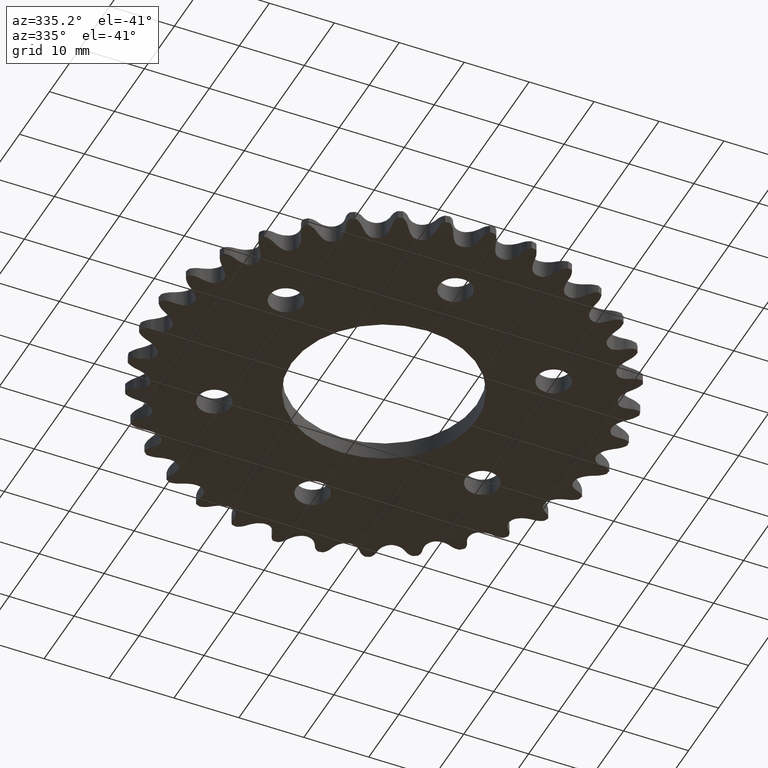
[diagram: clean part render]
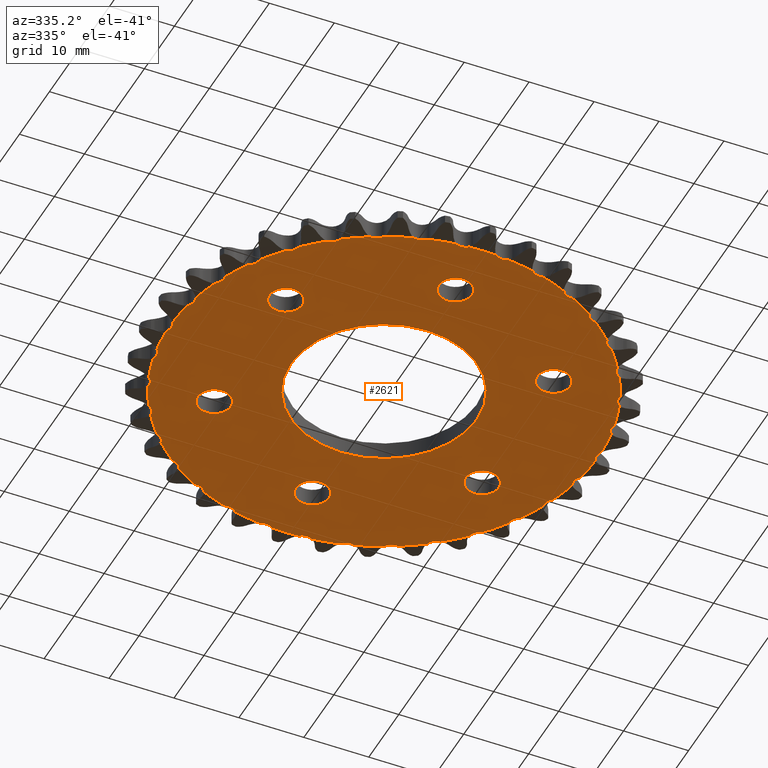
[diagram: same view with one face highlighted and labeled with its STEP entity id]
A machine part, auxiliary view. The second image highlights one B-rep face of the part: STEP entity #2621.
In plain terms, the highlighted planar face has unit normal (-0, 0, -1).
Its self-contained STEP definition (entity closure, byte-faithful):
#6 = CARTESIAN_POINT ( 'NONE',  ( 1.124844558878012268, -0.6520452297012457876, -0.05500000000000000028 ) ) ;
#9 = ORIENTED_EDGE ( 'NONE', *, *, #10037, .T. ) ;
#15 = DIRECTION ( 'NONE',  ( -0.0000000000000000000, -0.0000000000000000000, 1.000000000000000000 ) ) ;
#64 = ORIENTED_EDGE ( 'NONE', *, *, #1436, .T. ) ;
#88 = DIRECTION ( 'NONE',  ( -0.0000000000000000000, -0.0000000000000000000, -1.000000000000000000 ) ) ;
#102 = AXIS2_PLACEMENT_3D ( 'NONE', #9484, #3176, #8236 ) ;
#118 = ORIENTED_EDGE ( 'NONE', *, *, #1153, .T. ) ;
#141 = CIRCLE ( 'NONE', #6425, 1.300168551847652010 ) ;
#163 = CARTESIAN_POINT ( 'NONE',  ( 0.9349821477840363215, 0.9034636940900123703, -0.05500000000000000028 ) ) ;
#168 = EDGE_CURVE ( 'NONE', #6484, #4037, #8720, .T. ) ;
#185 = ORIENTED_EDGE ( 'NONE', *, *, #9105, .T. ) ;
#196 = ORIENTED_EDGE ( 'NONE', *, *, #1549, .T. ) ;
#197 = CIRCLE ( 'NONE', #13300, 0.06682499999999950979 ) ;
#210 = CARTESIAN_POINT ( 'NONE',  ( -1.264851841066655380, -0.2489335440737601712, -0.05500000000000000028 ) ) ;
#231 = CARTESIAN_POINT ( 'NONE',  ( -1.196436093548626900, 0.4893899548669911614, -0.05500000000000000028 ) ) ;
#277 = ORIENTED_EDGE ( 'NONE', *, *, #7458, .T. ) ;
#323 = DIRECTION ( 'NONE',  ( 0.9829730996839040058, 0.1837495178165585441, 0.0000000000000000000 ) ) ;
#351 = CARTESIAN_POINT ( 'NONE',  ( 0.0000000000000000000, -1.702259050814821195E-17, -0.05500000000000000028 ) ) ;
#380 = CIRCLE ( 'NONE', #2373, 0.06682499999999952367 ) ;
#390 = DIRECTION ( 'NONE',  ( 0.0000000000000000000, 0.0000000000000000000, 1.000000000000000000 ) ) ;
#398 = CIRCLE ( 'NONE', #5348, 1.300168551847652010 ) ;
#406 = EDGE_CURVE ( 'NONE', #1812, #437, #1074, .T. ) ;
#425 = AXIS2_PLACEMENT_3D ( 'NONE', #5930, #4821, #13276 ) ;
#437 = VERTEX_POINT ( 'NONE', #4224 ) ;
#443 = CARTESIAN_POINT ( 'NONE',  ( 0.0000000000000000000, 0.0000000000000000000, -0.05500000000000000028 ) ) ;
#460 = AXIS2_PLACEMENT_3D ( 'NONE', #1586, #6897, #7750 ) ;
#486 = CIRCLE ( 'NONE', #12762, 1.300168551847652010 ) ;
#511 = AXIS2_PLACEMENT_3D ( 'NONE', #1091, #6315, #8397 ) ;
#529 = AXIS2_PLACEMENT_3D ( 'NONE', #9000, #4762, #3860 ) ;
#574 = VERTEX_POINT ( 'NONE', #10646 ) ;
#588 = AXIS2_PLACEMENT_3D ( 'NONE', #4977, #4824, #6919 ) ;
#593 = CIRCLE ( 'NONE', #1284, 0.06682499999999955143 ) ;
#602 = DIRECTION ( 'NONE',  ( -0.0000000000000000000, -0.0000000000000000000, 1.000000000000000000 ) ) ;
#620 = EDGE_CURVE ( 'NONE', #9963, #9506, #9370, .T. ) ;
#637 = CARTESIAN_POINT ( 'NONE',  ( 0.0000000000000000000, -1.702259050814821195E-17, -0.05500000000000000028 ) ) ;
#676 = CIRCLE ( 'NONE', #9267, 1.300168551847652010 ) ;
#682 = CARTESIAN_POINT ( 'NONE',  ( -1.354743930932479357, 8.656543329923633765E-15, -0.05500000000000000028 ) ) ;
#702 = ORIENTED_EDGE ( 'NONE', *, *, #2365, .T. ) ;
#714 = DIRECTION ( 'NONE',  ( 0.0000000000000000000, 0.0000000000000000000, 1.000000000000000000 ) ) ;
#718 = CIRCLE ( 'NONE', #1165, 1.300168551847652010 ) ;
#721 = AXIS2_PLACEMENT_3D ( 'NONE', #1946, #5176, #11277 ) ;
#764 = DIRECTION ( 'NONE',  ( 0.4457383557765364768, -0.8951632913550632287, 0.0000000000000000000 ) ) ;
#775 = CARTESIAN_POINT ( 'NONE',  ( 0.9123988160479123977, 0.4687499999999981681, -0.05499999999999998640 ) ) ;
#782 = DIRECTION ( 'NONE',  ( -0.6026346363792609573, -0.7980172272802360522, 0.0000000000000000000 ) ) ;
#790 = AXIS2_PLACEMENT_3D ( 'NONE', #11580, #9498, #2243 ) ;
#823 = AXIS2_PLACEMENT_3D ( 'NONE', #9684, #2292, #9630 ) ;
#858 = CARTESIAN_POINT ( 'NONE',  ( 0.0000000000000000000, -1.702259050814821195E-17, -0.05500000000000000028 ) ) ;
#890 = VERTEX_POINT ( 'NONE', #11261 ) ;
#925 = CARTESIAN_POINT ( 'NONE',  ( 0.0000000000000000000, -1.702259050814821195E-17, -0.05500000000000000028 ) ) ;
#945 = DIRECTION ( 'NONE',  ( -0.0000000000000000000, -0.0000000000000000000, 1.000000000000000000 ) ) ;
#948 = CARTESIAN_POINT ( 'NONE',  ( 0.0000000000000000000, -1.702259050814821195E-17, -0.05500000000000000028 ) ) ;
#950 = VERTEX_POINT ( 'NONE', #3264 ) ;
#951 = CIRCLE ( 'NONE', #3607, 1.300168551847652010 ) ;
#956 = ORIENTED_EDGE ( 'NONE', *, *, #2882, .T. ) ;
#980 = ORIENTED_EDGE ( 'NONE', *, *, #9739, .T. ) ;
#990 = DIRECTION ( 'NONE',  ( 0.0000000000000000000, 0.0000000000000000000, 1.000000000000000000 ) ) ;
#1010 = EDGE_CURVE ( 'NONE', #7315, #5235, #11956, .T. ) ;
#1073 = DIRECTION ( 'NONE',  ( -0.9829730996839000090, 0.1837495178165790832, 0.0000000000000000000 ) ) ;
#1074 = CIRCLE ( 'NONE', #6687, 0.1004999999999999782 ) ;
#1091 = CARTESIAN_POINT ( 'NONE',  ( -0.8164156162044897691, 1.081108995437476628, -0.05500000000000000028 ) ) ;
#1096 = CIRCLE ( 'NONE', #5362, 1.300168551847652010 ) ;
#1099 = ORIENTED_EDGE ( 'NONE', *, *, #7832, .T. ) ;
#1130 = EDGE_CURVE ( 'NONE', #5427, #6484, #13094, .T. ) ;
#1134 = DIRECTION ( 'NONE',  ( -0.9324722294043524817, 0.3612416661871617474, 0.0000000000000000000 ) ) ;
#1152 = ORIENTED_EDGE ( 'NONE', *, *, #8531, .T. ) ;
#1153 = EDGE_CURVE ( 'NONE', #3892, #3856, #2690, .T. ) ;
#1165 = AXIS2_PLACEMENT_3D ( 'NONE', #13088, #6796, #3720 ) ;
#1172 = CIRCLE ( 'NONE', #6589, 0.06682499999999955143 ) ;
#1177 = VERTEX_POINT ( 'NONE', #1814 ) ;
#1190 = EDGE_LOOP ( 'NONE', ( #9652, #7398 ) ) ;
#1195 = EDGE_CURVE ( 'NONE', #11592, #950, #7540, .T. ) ;
#1204 = EDGE_CURVE ( 'NONE', #6892, #7020, #7227, .T. ) ;
#1232 = AXIS2_PLACEMENT_3D ( 'NONE', #12283, #9330, #8167 ) ;
#1284 = AXIS2_PLACEMENT_3D ( 'NONE', #13430, #10443, #4052 ) ;
#1287 = VERTEX_POINT ( 'NONE', #11184 ) ;
#1292 = CARTESIAN_POINT ( 'NONE',  ( -1.085073318110198803, -0.7162779890091167667, -0.05500000000000000028 ) ) ;
#1293 = DIRECTION ( 'NONE',  ( -0.0000000000000000000, -0.0000000000000000000, 1.000000000000000000 ) ) ;
#1303 = ORIENTED_EDGE ( 'NONE', *, *, #10834, .T. ) ;
#1310 = VERTEX_POINT ( 'NONE', #1943 ) ;
#1328 = CARTESIAN_POINT ( 'NONE',  ( 0.0000000000000000000, -1.702259050814821195E-17, -0.05500000000000000028 ) ) ;
#1348 = CARTESIAN_POINT ( 'NONE',  ( 0.0000000000000000000, -1.702259050814821195E-17, -0.05500000000000000028 ) ) ;
#1377 = CIRCLE ( 'NONE', #10060, 1.300168551847652010 ) ;
#1436 = EDGE_CURVE ( 'NONE', #9506, #2919, #2517, .T. ) ;
#1441 = ORIENTED_EDGE ( 'NONE', *, *, #620, .T. ) ;
#1463 = EDGE_LOOP ( 'NONE', ( #196, #9448, #2835, #702, #956, #11713, #8329, #5939, #1766, #118, #10998, #11903, #2319, #9549, #10586, #4470, #1659, #5836, #2596, #2123, #6901, #9, #6201, #1834, #9339, #8808, #9827, #2634, #12824, #7993, #8430, #7675, #1993, #13487, #9798, #5754, #11072, #5568, #12573, #4051, #5826, #1989, #5384, #9018, #5286, #1705, #13055, #1660, #12852, #7437, #277, #9187, #2759, #7963, #6851, #5808, #1099, #12663, #3542, #185, #12237, #7638, #9077, #7162, #4098, #6991, #10176, #10709, #9486, #10928, #6654, #10286, #1441, #64, #7222 ) ) ;
#1510 = VERTEX_POINT ( 'NONE', #9553 ) ;
#1549 = EDGE_CURVE ( 'NONE', #7757, #3231, #9857, .T. ) ;
#1586 = CARTESIAN_POINT ( 'NONE',  ( 0.0000000000000000000, -1.702259050814821195E-17, -0.05500000000000000028 ) ) ;
#1613 = EDGE_CURVE ( 'NONE', #11723, #8027, #9037, .T. ) ;
#1656 = DIRECTION ( 'NONE',  ( 0.4457383557765504101, 0.8951632913550563453, 0.0000000000000000000 ) ) ;
#1659 = ORIENTED_EDGE ( 'NONE', *, *, #7199, .T. ) ;
#1660 = ORIENTED_EDGE ( 'NONE', *, *, #4421, .T. ) ;
#1682 = CIRCLE ( 'NONE', #13177, 1.300168551847652010 ) ;
#1705 = ORIENTED_EDGE ( 'NONE', *, *, #12643, .T. ) ;
#1710 = DIRECTION ( 'NONE',  ( 1.000000000000000000, 0.0000000000000000000, 0.0000000000000000000 ) ) ;
#1713 = CARTESIAN_POINT ( 'NONE',  ( 0.9858789461507142526, 0.8476325658859369394, -0.05500000000000000028 ) ) ;
#1716 = VERTEX_POINT ( 'NONE', #6158 ) ;
#1737 = DIRECTION ( 'NONE',  ( -1.000000000000000000, 0.0000000000000000000, 0.0000000000000000000 ) ) ;
#1766 = ORIENTED_EDGE ( 'NONE', *, *, #9760, .T. ) ;
#1798 = EDGE_CURVE ( 'NONE', #4354, #11137, #4142, .T. ) ;
#1801 = VERTEX_POINT ( 'NONE', #13335 ) ;
#1812 = VERTEX_POINT ( 'NONE', #2109 ) ;
#1814 = CARTESIAN_POINT ( 'NONE',  ( 1.270550190208237673, 0.2759356399152377293, -0.05500000000000000028 ) ) ;
#1817 = EDGE_CURVE ( 'NONE', #6550, #10607, #1377, .T. ) ;
#1834 = ORIENTED_EDGE ( 'NONE', *, *, #11714, .T. ) ;
#1844 = EDGE_CURVE ( 'NONE', #6774, #4412, #2352, .T. ) ;
#1848 = VERTEX_POINT ( 'NONE', #210 ) ;
#1866 = AXIS2_PLACEMENT_3D ( 'NONE', #1962, #4047, #11342 ) ;
#1871 = AXIS2_PLACEMENT_3D ( 'NONE', #7272, #6254, #8336 ) ;
#1914 = CARTESIAN_POINT ( 'NONE',  ( -1.354743930932479357, 8.656543329923633765E-15, -0.05500000000000000028 ) ) ;
#1919 = DIRECTION ( 'NONE',  ( 1.000000000000000000, 0.0000000000000000000, 0.0000000000000000000 ) ) ;
#1943 = CARTESIAN_POINT ( 'NONE',  ( 1.284432218757002087, -0.2016733463613490929, -0.05500000000000000028 ) ) ;
#1946 = CARTESIAN_POINT ( 'NONE',  ( 0.8118988160479124749, 0.4687499999999981681, -0.05499999999999998640 ) ) ;
#1956 = VERTEX_POINT ( 'NONE', #8607 ) ;
#1962 = CARTESIAN_POINT ( 'NONE',  ( 0.6038613322721005927, 1.212717036156807149, -0.05500000000000000028 ) ) ;
#1989 = ORIENTED_EDGE ( 'NONE', *, *, #1844, .T. ) ;
#1993 = ORIENTED_EDGE ( 'NONE', *, *, #2600, .T. ) ;
#2007 = VERTEX_POINT ( 'NONE', #9983 ) ;
#2009 = AXIS2_PLACEMENT_3D ( 'NONE', #10547, #7323, #6385 ) ;
#2019 = CIRCLE ( 'NONE', #790, 0.06682499999999950979 ) ;
#2035 = DIRECTION ( 'NONE',  ( -0.0000000000000000000, -0.0000000000000000000, -1.000000000000000000 ) ) ;
#2052 = CARTESIAN_POINT ( 'NONE',  ( 0.9858789461506914931, -0.8476325658859632517, -0.05500000000000000028 ) ) ;
#2057 = CARTESIAN_POINT ( 'NONE',  ( -1.263261093548626368, 0.4893899548669911614, -0.05500000000000000028 ) ) ;
#2069 = DIRECTION ( 'NONE',  ( 0.0000000000000000000, 0.0000000000000000000, 1.000000000000000000 ) ) ;
#2071 = EDGE_CURVE ( 'NONE', #8027, #13175, #6893, .T. ) ;
#2075 = EDGE_CURVE ( 'NONE', #11916, #11077, #10012, .T. ) ;
#2109 = CARTESIAN_POINT ( 'NONE',  ( 0.1004999999999999782, -0.9375000000000000000, -0.05499999999999998640 ) ) ;
#2119 = AXIS2_PLACEMENT_3D ( 'NONE', #8884, #3693, #1656 ) ;
#2123 = ORIENTED_EDGE ( 'NONE', *, *, #1130, .T. ) ;
#2136 = EDGE_CURVE ( 'NONE', #6619, #6309, #398, .T. ) ;
#2138 = VERTEX_POINT ( 'NONE', #8969 ) ;
#2145 = CARTESIAN_POINT ( 'NONE',  ( 1.225504939255089631, -0.4342532752611075186, -0.05500000000000000028 ) ) ;
#2147 = VERTEX_POINT ( 'NONE', #8046 ) ;
#2153 = VERTEX_POINT ( 'NONE', #10177 ) ;
#2181 = VERTEX_POINT ( 'NONE', #3874 ) ;
#2221 = EDGE_CURVE ( 'NONE', #6988, #1287, #12443, .T. ) ;
#2243 = DIRECTION ( 'NONE',  ( 0.4457383557765364768, -0.8951632913550632287, 0.0000000000000000000 ) ) ;
#2246 = EDGE_CURVE ( 'NONE', #10607, #9538, #380, .T. ) ;
#2261 = VERTEX_POINT ( 'NONE', #13463 ) ;
#2292 = DIRECTION ( 'NONE',  ( 0.0000000000000000000, 0.0000000000000000000, 1.000000000000000000 ) ) ;
#2294 = AXIS2_PLACEMENT_3D ( 'NONE', #8639, #12738, #10779 ) ;
#2319 = ORIENTED_EDGE ( 'NONE', *, *, #5479, .T. ) ;
#2340 = CIRCLE ( 'NONE', #2705, 1.300168551847652010 ) ;
#2352 = CIRCLE ( 'NONE', #6551, 0.06682499999999956530 ) ;
#2361 = AXIS2_PLACEMENT_3D ( 'NONE', #682, #9084, #12093 ) ;
#2365 = EDGE_CURVE ( 'NONE', #5235, #890, #5910, .T. ) ;
#2373 = AXIS2_PLACEMENT_3D ( 'NONE', #12526, #7121, #2973 ) ;
#2418 = CARTESIAN_POINT ( 'NONE',  ( 0.0000000000000000000, -0.9375000000000000000, -0.05499999999999998640 ) ) ;
#2513 = EDGE_CURVE ( 'NONE', #1716, #6695, #3333, .T. ) ;
#2517 = CIRCLE ( 'NONE', #3754, 0.06682499999999955143 ) ;
#2578 = DIRECTION ( 'NONE',  ( 1.000000000000000000, 0.0000000000000000000, 0.0000000000000000000 ) ) ;
#2596 = ORIENTED_EDGE ( 'NONE', *, *, #7128, .T. ) ;
#2600 = EDGE_CURVE ( 'NONE', #950, #2612, #10653, .T. ) ;
#2612 = VERTEX_POINT ( 'NONE', #8870 ) ;
#2621 = ADVANCED_FACE ( 'NONE', ( #6881, #11623, #12104, #6554, #5276, #3806, #11773, #9007 ), #9917, .T. ) ;
#2634 = ORIENTED_EDGE ( 'NONE', *, *, #1798, .T. ) ;
#2655 = EDGE_CURVE ( 'NONE', #7020, #8832, #718, .T. ) ;
#2656 = CARTESIAN_POINT ( 'NONE',  ( 0.0000000000000000000, -1.702259050814821195E-17, -0.05500000000000000028 ) ) ;
#2690 = CIRCLE ( 'NONE', #3335, 1.300168551847652010 ) ;
#2691 = CARTESIAN_POINT ( 'NONE',  ( -0.7113988160479060019, 0.4687500000000094924, -0.05499999999999998640 ) ) ;
#2705 = AXIS2_PLACEMENT_3D ( 'NONE', #4506, #12874, #6636 ) ;
#2713 = EDGE_CURVE ( 'NONE', #7761, #10893, #7186, .T. ) ;
#2759 = ORIENTED_EDGE ( 'NONE', *, *, #9909, .T. ) ;
#2788 = AXIS2_PLACEMENT_3D ( 'NONE', #5347, #5315, #12639 ) ;
#2793 = CIRCLE ( 'NONE', #12317, 0.06682499999999959306 ) ;
#2799 = CARTESIAN_POINT ( 'NONE',  ( 0.0000000000000000000, -1.702259050814821195E-17, -0.05500000000000000028 ) ) ;
#2835 = ORIENTED_EDGE ( 'NONE', *, *, #1010, .T. ) ;
#2854 = CIRCLE ( 'NONE', #6183, 0.06682499999999950979 ) ;
#2882 = EDGE_CURVE ( 'NONE', #890, #10322, #7357, .T. ) ;
#2911 = DIRECTION ( 'NONE',  ( -0.2736629900720863873, -0.9618256431728179345, 0.0000000000000000000 ) ) ;
#2912 = DIRECTION ( 'NONE',  ( 1.000000000000000000, 0.0000000000000000000, 0.0000000000000000000 ) ) ;
#2917 = EDGE_CURVE ( 'NONE', #4589, #9493, #11757, .T. ) ;
#2919 = VERTEX_POINT ( 'NONE', #7327 ) ;
#2937 = DIRECTION ( 'NONE',  ( -0.0000000000000000000, -0.0000000000000000000, -1.000000000000000000 ) ) ;
#2938 = CARTESIAN_POINT ( 'NONE',  ( 0.8118988160479124749, 0.4687499999999981681, -0.05499999999999998640 ) ) ;
#2973 = DIRECTION ( 'NONE',  ( -0.9324722294043576998, -0.3612416661871478696, 0.0000000000000000000 ) ) ;
#2980 = CARTESIAN_POINT ( 'NONE',  ( -1.331676841066654848, -0.2489335440737601712, -0.05500000000000000028 ) ) ;
#3004 = CIRCLE ( 'NONE', #7916, 0.06682499999999956530 ) ;
#3006 = AXIS2_PLACEMENT_3D ( 'NONE', #5342, #4209, #6297 ) ;
#3014 = DIRECTION ( 'NONE',  ( 0.0000000000000000000, 0.0000000000000000000, 1.000000000000000000 ) ) ;
#3017 = CARTESIAN_POINT ( 'NONE',  ( -0.9349821477840301043, -0.9034636940900186985, -0.05500000000000000028 ) ) ;
#3045 = AXIS2_PLACEMENT_3D ( 'NONE', #13400, #11178, #2912 ) ;
#3046 = EDGE_CURVE ( 'NONE', #2147, #6774, #1682, .T. ) ;
#3086 = AXIS2_PLACEMENT_3D ( 'NONE', #6452, #3253, #8408 ) ;
#3125 = EDGE_CURVE ( 'NONE', #4936, #4354, #4596, .T. ) ;
#3139 = AXIS2_PLACEMENT_3D ( 'NONE', #948, #9139, #12286 ) ;
#3146 = EDGE_CURVE ( 'NONE', #9006, #5236, #9829, .T. ) ;
#3176 = DIRECTION ( 'NONE',  ( 0.0000000000000000000, 0.0000000000000000000, 1.000000000000000000 ) ) ;
#3184 = CIRCLE ( 'NONE', #3904, 1.300168551847652010 ) ;
#3231 = VERTEX_POINT ( 'NONE', #7047 ) ;
#3253 = DIRECTION ( 'NONE',  ( -0.0000000000000000000, -0.0000000000000000000, -1.000000000000000000 ) ) ;
#3258 = CIRCLE ( 'NONE', #11023, 0.1004999999999999227 ) ;
#3264 = CARTESIAN_POINT ( 'NONE',  ( -0.9349821477840184469, 0.9034636940900303559, -0.05500000000000000028 ) ) ;
#3280 = DIRECTION ( 'NONE',  ( -0.0000000000000000000, -0.0000000000000000000, -1.000000000000000000 ) ) ;
#3311 = DIRECTION ( 'NONE',  ( -0.0000000000000000000, -0.0000000000000000000, -1.000000000000000000 ) ) ;
#3326 = CIRCLE ( 'NONE', #5574, 0.06682499999999953755 ) ;
#3333 = CIRCLE ( 'NONE', #8115, 0.06682499999999957918 ) ;
#3335 = AXIS2_PLACEMENT_3D ( 'NONE', #12143, #10057, #3717 ) ;
#3355 = DIRECTION ( 'NONE',  ( 0.2736629900720782826, -0.9618256431728202660, 0.0000000000000000000 ) ) ;
#3379 = DIRECTION ( 'NONE',  ( 1.000000000000000000, 0.0000000000000000000, 0.0000000000000000000 ) ) ;
#3438 = DIRECTION ( 'NONE',  ( -0.0000000000000000000, -0.0000000000000000000, -1.000000000000000000 ) ) ;
#3529 = CARTESIAN_POINT ( 'NONE',  ( -0.6131045384248224872, 1.146534381593725005, -0.05500000000000000028 ) ) ;
#3532 = EDGE_CURVE ( 'NONE', #4412, #1510, #13328, .T. ) ;
#3534 = AXIS2_PLACEMENT_3D ( 'NONE', #12982, #6747, #4704 ) ;
#3542 = ORIENTED_EDGE ( 'NONE', *, *, #5227, .T. ) ;
#3607 = AXIS2_PLACEMENT_3D ( 'NONE', #5934, #2937, #10086 ) ;
#3624 = CARTESIAN_POINT ( 'NONE',  ( 1.299619699555794039, 0.03777432646822694029, -0.05500000000000000028 ) ) ;
#3629 = CARTESIAN_POINT ( 'NONE',  ( 0.5625000000000001110, 0.0000000000000000000, -0.05500000000000000028 ) ) ;
#3650 = EDGE_CURVE ( 'NONE', #8416, #4228, #486, .T. ) ;
#3655 = DIRECTION ( 'NONE',  ( -0.0000000000000000000, -0.0000000000000000000, -1.000000000000000000 ) ) ;
#3656 = AXIS2_PLACEMENT_3D ( 'NONE', #13337, #2035, #12310 ) ;
#3686 = CARTESIAN_POINT ( 'NONE',  ( 1.001167845509656873, -0.9126850845258389633, -0.05500000000000000028 ) ) ;
#3689 = AXIS2_PLACEMENT_3D ( 'NONE', #13398, #13443, #2911 ) ;
#3693 = DIRECTION ( 'NONE',  ( 0.0000000000000000000, 0.0000000000000000000, 1.000000000000000000 ) ) ;
#3717 = DIRECTION ( 'NONE',  ( -1.000000000000000000, 0.0000000000000000000, 0.0000000000000000000 ) ) ;
#3720 = DIRECTION ( 'NONE',  ( -1.000000000000000000, 0.0000000000000000000, 0.0000000000000000000 ) ) ;
#3736 = CIRCLE ( 'NONE', #3006, 0.06682499999999955143 ) ;
#3754 = AXIS2_PLACEMENT_3D ( 'NONE', #11847, #9906, #13025 ) ;
#3784 = EDGE_CURVE ( 'NONE', #8113, #7180, #3736, .T. ) ;
#3795 = VERTEX_POINT ( 'NONE', #12707 ) ;
#3806 = FACE_BOUND ( 'NONE', #13203, .T. ) ;
#3844 = CARTESIAN_POINT ( 'NONE',  ( 0.7113988160479093326, -0.4687500000000038303, -0.05499999999999998640 ) ) ;
#3846 = ORIENTED_EDGE ( 'NONE', *, *, #7846, .T. ) ;
#3850 = CARTESIAN_POINT ( 'NONE',  ( 0.0000000000000000000, -1.702259050814821195E-17, -0.05500000000000000028 ) ) ;
#3855 = DIRECTION ( 'NONE',  ( 0.2736629900720946584, 0.9618256431728156031, 0.0000000000000000000 ) ) ;
#3856 = VERTEX_POINT ( 'NONE', #1292 ) ;
#3860 = DIRECTION ( 'NONE',  ( 0.8502171357296203213, 0.5264321628773457329, 0.0000000000000000000 ) ) ;
#3874 = CARTESIAN_POINT ( 'NONE',  ( 0.9349821477840120076, -0.9034636940900372393, -0.05500000000000000028 ) ) ;
#3888 = DIRECTION ( 'NONE',  ( 0.0000000000000000000, 0.0000000000000000000, 1.000000000000000000 ) ) ;
#3892 = VERTEX_POINT ( 'NONE', #11748 ) ;
#3893 = VERTEX_POINT ( 'NONE', #10747 ) ;
#3904 = AXIS2_PLACEMENT_3D ( 'NONE', #925, #10260, #4152 ) ;
#3950 = CARTESIAN_POINT ( 'NONE',  ( 1.124844558878029366, 0.6520452297012160336, -0.05500000000000000028 ) ) ;
#3970 = AXIS2_PLACEMENT_3D ( 'NONE', #4835, #12138, #10101 ) ;
#3971 = CIRCLE ( 'NONE', #1232, 0.06682499999999948204 ) ;
#4031 = EDGE_CURVE ( 'NONE', #11900, #9276, #951, .T. ) ;
#4037 = VERTEX_POINT ( 'NONE', #11253 ) ;
#4047 = DIRECTION ( 'NONE',  ( 0.0000000000000000000, 0.0000000000000000000, 1.000000000000000000 ) ) ;
#4051 = ORIENTED_EDGE ( 'NONE', *, *, #6353, .T. ) ;
#4052 = DIRECTION ( 'NONE',  ( -1.000000000000000000, 0.0000000000000000000, 0.0000000000000000000 ) ) ;
#4067 = CARTESIAN_POINT ( 'NONE',  ( -0.3193254970862853814, -1.260344988534574773, -0.05500000000000000028 ) ) ;
#4078 = VERTEX_POINT ( 'NONE', #3844 ) ;
#4092 = AXIS2_PLACEMENT_3D ( 'NONE', #8991, #11175, #764 ) ;
#4098 = ORIENTED_EDGE ( 'NONE', *, *, #5709, .T. ) ;
#4102 = CIRCLE ( 'NONE', #102, 0.06682499999999945428 ) ;
#4141 = CARTESIAN_POINT ( 'NONE',  ( 0.3919901287877396445, -1.239670118276064548, -0.05500000000000000028 ) ) ;
#4142 = CIRCLE ( 'NONE', #1871, 1.300168551847652010 ) ;
#4146 = DIRECTION ( 'NONE',  ( 0.0000000000000000000, 0.0000000000000000000, 1.000000000000000000 ) ) ;
#4152 = DIRECTION ( 'NONE',  ( -1.000000000000000000, 0.0000000000000000000, 0.0000000000000000000 ) ) ;
#4173 = CIRCLE ( 'NONE', #511, 0.06682499999999955143 ) ;
#4184 = CARTESIAN_POINT ( 'NONE',  ( -1.331676841066651740, 0.2489335440737771299, -0.05500000000000000028 ) ) ;
#4193 = AXIS2_PLACEMENT_3D ( 'NONE', #9168, #11171, #7136 ) ;
#4209 = DIRECTION ( 'NONE',  ( 0.0000000000000000000, 0.0000000000000000000, 1.000000000000000000 ) ) ;
#4224 = CARTESIAN_POINT ( 'NONE',  ( -0.1004999999999999782, -0.9375000000000000000, -0.05499999999999998640 ) ) ;
#4228 = VERTEX_POINT ( 'NONE', #10362 ) ;
#4235 = CIRCLE ( 'NONE', #1866, 0.06682499999999952367 ) ;
#4281 = CARTESIAN_POINT ( 'NONE',  ( -0.8164156162045037579, -1.081108995437465969, -0.05500000000000000028 ) ) ;
#4306 = DIRECTION ( 'NONE',  ( -1.000000000000000000, 0.0000000000000000000, 0.0000000000000000000 ) ) ;
#4320 = DIRECTION ( 'NONE',  ( -1.000000000000000000, 0.0000000000000000000, 0.0000000000000000000 ) ) ;
#4351 = EDGE_CURVE ( 'NONE', #13376, #4078, #3258, .T. ) ;
#4354 = VERTEX_POINT ( 'NONE', #6326 ) ;
#4388 = AXIS2_PLACEMENT_3D ( 'NONE', #4925, #4973, #1710 ) ;
#4412 = VERTEX_POINT ( 'NONE', #9742 ) ;
#4421 = EDGE_CURVE ( 'NONE', #4577, #4890, #12198, .T. ) ;
#4453 = AXIS2_PLACEMENT_3D ( 'NONE', #3850, #7016, #13252 ) ;
#4455 = CIRCLE ( 'NONE', #721, 0.1004999999999999227 ) ;
#4470 = ORIENTED_EDGE ( 'NONE', *, *, #8364, .T. ) ;
#4506 = CARTESIAN_POINT ( 'NONE',  ( 0.0000000000000000000, -1.702259050814821195E-17, -0.05500000000000000028 ) ) ;
#4513 = AXIS2_PLACEMENT_3D ( 'NONE', #12182, #9043, #3855 ) ;
#4532 = CARTESIAN_POINT ( 'NONE',  ( -1.196436093548632895, -0.4893899548669748967, -0.05500000000000000028 ) ) ;
#4576 = CARTESIAN_POINT ( 'NONE',  ( 0.1575269654551565979, -1.290590375900932729, -0.05500000000000000028 ) ) ;
#4577 = VERTEX_POINT ( 'NONE', #7938 ) ;
#4589 = VERTEX_POINT ( 'NONE', #8909 ) ;
#4596 = CIRCLE ( 'NONE', #9460, 0.06682499999999956530 ) ;
#4604 = AXIS2_PLACEMENT_3D ( 'NONE', #11492, #12530, #9433 ) ;
#4613 = DIRECTION ( 'NONE',  ( -1.000000000000000000, 0.0000000000000000000, 0.0000000000000000000 ) ) ;
#4642 = CARTESIAN_POINT ( 'NONE',  ( 0.3919901287877742835, 1.239670118276054556, -0.05500000000000000028 ) ) ;
#4653 = CIRCLE ( 'NONE', #588, 0.1004999999999999782 ) ;
#4672 = DIRECTION ( 'NONE',  ( 1.000000000000000000, 0.0000000000000000000, 0.0000000000000000000 ) ) ;
#4696 = VERTEX_POINT ( 'NONE', #3950 ) ;
#4704 = DIRECTION ( 'NONE',  ( -1.000000000000000000, 0.0000000000000000000, 0.0000000000000000000 ) ) ;
#4752 = DIRECTION ( 'NONE',  ( 0.0000000000000000000, 0.0000000000000000000, 1.000000000000000000 ) ) ;
#4762 = DIRECTION ( 'NONE',  ( 0.0000000000000000000, 0.0000000000000000000, 1.000000000000000000 ) ) ;
#4765 = VERTEX_POINT ( 'NONE', #4141 ) ;
#4818 = DIRECTION ( 'NONE',  ( 0.0000000000000000000, 0.0000000000000000000, 1.000000000000000000 ) ) ;
#4821 = DIRECTION ( 'NONE',  ( -0.0000000000000000000, -0.0000000000000000000, 1.000000000000000000 ) ) ;
#4824 = DIRECTION ( 'NONE',  ( -0.0000000000000000000, -0.0000000000000000000, 1.000000000000000000 ) ) ;
#4835 = CARTESIAN_POINT ( 'NONE',  ( -0.8118988160479059246, 0.4687500000000094924, -0.05499999999999998640 ) ) ;
#4841 = DIRECTION ( 'NONE',  ( 0.0000000000000000000, 0.0000000000000000000, 1.000000000000000000 ) ) ;
#4850 = CARTESIAN_POINT ( 'NONE',  ( 1.225504939255101844, 0.4342532752610737123, -0.05500000000000000028 ) ) ;
#4866 = CARTESIAN_POINT ( 'NONE',  ( -0.3707432749209774725, 1.303027452703608535, -0.05500000000000000028 ) ) ;
#4890 = VERTEX_POINT ( 'NONE', #11642 ) ;
#4925 = CARTESIAN_POINT ( 'NONE',  ( 0.0000000000000000000, 0.0000000000000000000, -0.05500000000000000028 ) ) ;
#4932 = CARTESIAN_POINT ( 'NONE',  ( 0.0000000000000000000, -1.702259050814821195E-17, -0.05500000000000000028 ) ) ;
#4936 = VERTEX_POINT ( 'NONE', #231 ) ;
#4951 = DIRECTION ( 'NONE',  ( -1.000000000000000000, 0.0000000000000000000, 0.0000000000000000000 ) ) ;
#4953 = CIRCLE ( 'NONE', #3656, 1.300168551847652010 ) ;
#4956 = AXIS2_PLACEMENT_3D ( 'NONE', #10038, #8845, #11074 ) ;
#4973 = DIRECTION ( 'NONE',  ( 0.0000000000000000000, 0.0000000000000000000, 1.000000000000000000 ) ) ;
#4977 = CARTESIAN_POINT ( 'NONE',  ( 0.0000000000000000000, 0.9375000000000000000, -0.05499999999999998640 ) ) ;
#5004 = AXIS2_PLACEMENT_3D ( 'NONE', #8642, #5629, #9846 ) ;
#5021 = CARTESIAN_POINT ( 'NONE',  ( 0.3193254970862601239, -1.260344988534581434, -0.05500000000000000028 ) ) ;
#5031 = EDGE_CURVE ( 'NONE', #5236, #9006, #5485, .T. ) ;
#5039 = EDGE_CURVE ( 'NONE', #9538, #2007, #11530, .T. ) ;
#5045 = AXIS2_PLACEMENT_3D ( 'NONE', #11356, #2069, #9217 ) ;
#5128 = EDGE_CURVE ( 'NONE', #1801, #12247, #11194, .T. ) ;
#5176 = DIRECTION ( 'NONE',  ( -0.0000000000000000000, -0.0000000000000000000, 1.000000000000000000 ) ) ;
#5188 = ORIENTED_EDGE ( 'NONE', *, *, #4351, .T. ) ;
#5227 = EDGE_CURVE ( 'NONE', #7180, #1310, #10066, .T. ) ;
#5235 = VERTEX_POINT ( 'NONE', #6339 ) ;
#5236 = VERTEX_POINT ( 'NONE', #13480 ) ;
#5239 = VERTEX_POINT ( 'NONE', #11506 ) ;
#5276 = FACE_BOUND ( 'NONE', #11387, .T. ) ;
#5282 = CIRCLE ( 'NONE', #4193, 1.300168551847652010 ) ;
#5286 = ORIENTED_EDGE ( 'NONE', *, *, #10694, .T. ) ;
#5308 = CARTESIAN_POINT ( 'NONE',  ( -0.3707432749209941814, -1.303027452703603872, -0.05500000000000000028 ) ) ;
#5315 = DIRECTION ( 'NONE',  ( -0.0000000000000000000, -0.0000000000000000000, -1.000000000000000000 ) ) ;
#5342 = CARTESIAN_POINT ( 'NONE',  ( 1.354743930932479357, -1.873023280656060446E-14, -0.05500000000000000028 ) ) ;
#5347 = CARTESIAN_POINT ( 'NONE',  ( 0.0000000000000000000, -1.702259050814821195E-17, -0.05500000000000000028 ) ) ;
#5348 = AXIS2_PLACEMENT_3D ( 'NONE', #9151, #10125, #9062 ) ;
#5362 = AXIS2_PLACEMENT_3D ( 'NONE', #1348, #3438, #9763 ) ;
#5372 = CARTESIAN_POINT ( 'NONE',  ( -0.1004999999999999782, 0.9375000000000000000, -0.05499999999999998640 ) ) ;
#5384 = ORIENTED_EDGE ( 'NONE', *, *, #3532, .T. ) ;
#5386 = AXIS2_PLACEMENT_3D ( 'NONE', #2938, #10136, #13327 ) ;
#5407 = AXIS2_PLACEMENT_3D ( 'NONE', #5904, #4841, #11001 ) ;
#5418 = ORIENTED_EDGE ( 'NONE', *, *, #5128, .T. ) ;
#5427 = VERTEX_POINT ( 'NONE', #9681 ) ;
#5479 = EDGE_CURVE ( 'NONE', #6052, #4589, #13470, .T. ) ;
#5485 = CIRCLE ( 'NONE', #12164, 0.5625000000000001110 ) ;
#5488 = DIRECTION ( 'NONE',  ( -0.2736629900720740083, 0.9618256431728217093, 0.0000000000000000000 ) ) ;
#5568 = ORIENTED_EDGE ( 'NONE', *, *, #8714, .T. ) ;
#5574 = AXIS2_PLACEMENT_3D ( 'NONE', #8464, #9674, #9624 ) ;
#5600 = CARTESIAN_POINT ( 'NONE',  ( -0.08230058975324934523, -1.297561126167044110, -0.05500000000000000028 ) ) ;
#5629 = DIRECTION ( 'NONE',  ( 0.0000000000000000000, 0.0000000000000000000, 1.000000000000000000 ) ) ;
#5676 = CARTESIAN_POINT ( 'NONE',  ( -1.085001504604485634, 0.7131807777057652675, -0.05500000000000000028 ) ) ;
#5684 = EDGE_CURVE ( 'NONE', #11780, #11592, #13458, .T. ) ;
#5709 = EDGE_CURVE ( 'NONE', #3893, #9297, #141, .T. ) ;
#5729 = DIRECTION ( 'NONE',  ( 0.0000000000000000000, 0.0000000000000000000, 1.000000000000000000 ) ) ;
#5741 = CARTESIAN_POINT ( 'NONE',  ( -1.263261093548626368, 0.4893899548669911614, -0.05500000000000000028 ) ) ;
#5742 = AXIS2_PLACEMENT_3D ( 'NONE', #12665, #6298, #8471 ) ;
#5754 = ORIENTED_EDGE ( 'NONE', *, *, #2246, .T. ) ;
#5785 = CIRCLE ( 'NONE', #7225, 1.300168551847652010 ) ;
#5786 = CARTESIAN_POINT ( 'NONE',  ( 0.0000000000000000000, 0.9375000000000000000, -0.05499999999999998640 ) ) ;
#5801 = AXIS2_PLACEMENT_3D ( 'NONE', #3686, #5729, #5821 ) ;
#5807 = EDGE_CURVE ( 'NONE', #9297, #2181, #9572, .T. ) ;
#5808 = ORIENTED_EDGE ( 'NONE', *, *, #8313, .T. ) ;
#5821 = DIRECTION ( 'NONE',  ( 0.7390089172206681933, 0.6736956436465471043, 0.0000000000000000000 ) ) ;
#5826 = ORIENTED_EDGE ( 'NONE', *, *, #3046, .T. ) ;
#5835 = CARTESIAN_POINT ( 'NONE',  ( 0.6038613322720680632, -1.212717036156823136, -0.05500000000000000028 ) ) ;
#5836 = ORIENTED_EDGE ( 'NONE', *, *, #6368, .T. ) ;
#5904 = CARTESIAN_POINT ( 'NONE',  ( -1.001167845509663312, 0.9126850845258319689, -0.05500000000000000028 ) ) ;
#5910 = CIRCLE ( 'NONE', #3086, 1.300168551847652010 ) ;
#5930 = CARTESIAN_POINT ( 'NONE',  ( 0.8118988160479092553, -0.4687500000000038303, -0.05499999999999998640 ) ) ;
#5934 = CARTESIAN_POINT ( 'NONE',  ( 0.0000000000000000000, -1.702259050814821195E-17, -0.05500000000000000028 ) ) ;
#5939 = ORIENTED_EDGE ( 'NONE', *, *, #4031, .T. ) ;
#6003 = DIRECTION ( 'NONE',  ( 0.0000000000000000000, 0.0000000000000000000, 1.000000000000000000 ) ) ;
#6016 = DIRECTION ( 'NONE',  ( -0.0000000000000000000, -0.0000000000000000000, -1.000000000000000000 ) ) ;
#6052 = VERTEX_POINT ( 'NONE', #6641 ) ;
#6054 = CARTESIAN_POINT ( 'NONE',  ( 0.0000000000000000000, -1.702259050814821195E-17, -0.05500000000000000028 ) ) ;
#6066 = EDGE_CURVE ( 'NONE', #2919, #7757, #1096, .T. ) ;
#6111 = DIRECTION ( 'NONE',  ( -0.4457383557765421944, -0.8951632913550604531, 0.0000000000000000000 ) ) ;
#6128 = DIRECTION ( 'NONE',  ( -0.0000000000000000000, -0.0000000000000000000, -1.000000000000000000 ) ) ;
#6144 = DIRECTION ( 'NONE',  ( 0.0000000000000000000, 0.0000000000000000000, 1.000000000000000000 ) ) ;
#6158 = CARTESIAN_POINT ( 'NONE',  ( 1.198213617990130153, 0.5047002960932587268, -0.05500000000000000028 ) ) ;
#6183 = AXIS2_PLACEMENT_3D ( 'NONE', #4866, #10258, #13272 ) ;
#6187 = CIRCLE ( 'NONE', #8825, 0.06682499999999957918 ) ;
#6201 = ORIENTED_EDGE ( 'NONE', *, *, #2713, .T. ) ;
#6253 = CIRCLE ( 'NONE', #425, 0.1004999999999999227 ) ;
#6254 = DIRECTION ( 'NONE',  ( -0.0000000000000000000, -0.0000000000000000000, -1.000000000000000000 ) ) ;
#6268 = AXIS2_PLACEMENT_3D ( 'NONE', #12223, #4752, #6970 ) ;
#6273 = DIRECTION ( 'NONE',  ( 0.0000000000000000000, 0.0000000000000000000, 1.000000000000000000 ) ) ;
#6275 = EDGE_CURVE ( 'NONE', #11077, #11916, #4653, .T. ) ;
#6285 = DIRECTION ( 'NONE',  ( 0.09226835946329833837, -0.9957341762950349118, 0.0000000000000000000 ) ) ;
#6297 = DIRECTION ( 'NONE',  ( 0.09226835946331465865, 0.9957341762950332464, 0.0000000000000000000 ) ) ;
#6298 = DIRECTION ( 'NONE',  ( -0.0000000000000000000, -0.0000000000000000000, -1.000000000000000000 ) ) ;
#6309 = VERTEX_POINT ( 'NONE', #8090 ) ;
#6315 = DIRECTION ( 'NONE',  ( 0.0000000000000000000, 0.0000000000000000000, 1.000000000000000000 ) ) ;
#6326 = CARTESIAN_POINT ( 'NONE',  ( -1.198213617990120161, 0.5047002960932821525, -0.05500000000000000028 ) ) ;
#6336 = DIRECTION ( 'NONE',  ( -1.000000000000000000, 0.0000000000000000000, 0.0000000000000000000 ) ) ;
#6339 = CARTESIAN_POINT ( 'NONE',  ( -0.3919901287877639584, -1.239670118276056776, -0.05500000000000000028 ) ) ;
#6353 = EDGE_CURVE ( 'NONE', #4228, #2147, #593, .T. ) ;
#6368 = EDGE_CURVE ( 'NONE', #1848, #1956, #11820, .T. ) ;
#6385 = DIRECTION ( 'NONE',  ( -1.000000000000000000, 0.0000000000000000000, 0.0000000000000000000 ) ) ;
#6425 = AXIS2_PLACEMENT_3D ( 'NONE', #1328, #8743, #12782 ) ;
#6452 = CARTESIAN_POINT ( 'NONE',  ( 0.0000000000000000000, -1.702259050814821195E-17, -0.05500000000000000028 ) ) ;
#6458 = CARTESIAN_POINT ( 'NONE',  ( 0.8118988160479092553, -0.4687500000000038303, -0.05499999999999998640 ) ) ;
#6475 = EDGE_LOOP ( 'NONE', ( #7316, #12837 ) ) ;
#6484 = VERTEX_POINT ( 'NONE', #8593 ) ;
#6514 = AXIS2_PLACEMENT_3D ( 'NONE', #2057, #6144, #6111 ) ;
#6550 = VERTEX_POINT ( 'NONE', #11653 ) ;
#6551 = AXIS2_PLACEMENT_3D ( 'NONE', #7413, #9496, #1073 ) ;
#6554 = FACE_BOUND ( 'NONE', #6475, .T. ) ;
#6560 = CIRCLE ( 'NONE', #13073, 1.300168551847652010 ) ;
#6589 = AXIS2_PLACEMENT_3D ( 'NONE', #4184, #6273, #8262 ) ;
#6599 = CARTESIAN_POINT ( 'NONE',  ( -1.263261093548632363, -0.4893899548669748967, -0.05500000000000000028 ) ) ;
#6619 = VERTEX_POINT ( 'NONE', #9660 ) ;
#6626 = CARTESIAN_POINT ( 'NONE',  ( 0.3707432749209683687, -1.303027452703611422, -0.05500000000000000028 ) ) ;
#6636 = DIRECTION ( 'NONE',  ( -1.000000000000000000, 0.0000000000000000000, 0.0000000000000000000 ) ) ;
#6641 = CARTESIAN_POINT ( 'NONE',  ( -1.124844558878025147, -0.6520452297012232501, -0.05500000000000000028 ) ) ;
#6654 = ORIENTED_EDGE ( 'NONE', *, *, #13402, .T. ) ;
#6687 = AXIS2_PLACEMENT_3D ( 'NONE', #12558, #945, #8257 ) ;
#6695 = VERTEX_POINT ( 'NONE', #4850 ) ;
#6715 = DIRECTION ( 'NONE',  ( -0.0000000000000000000, -0.0000000000000000000, 1.000000000000000000 ) ) ;
#6747 = DIRECTION ( 'NONE',  ( -0.0000000000000000000, -0.0000000000000000000, -1.000000000000000000 ) ) ;
#6760 = EDGE_CURVE ( 'NONE', #6695, #1177, #12485, .T. ) ;
#6774 = VERTEX_POINT ( 'NONE', #11280 ) ;
#6780 = EDGE_CURVE ( 'NONE', #2612, #6550, #4173, .T. ) ;
#6783 = AXIS2_PLACEMENT_3D ( 'NONE', #11173, #3888, #12177 ) ;
#6796 = DIRECTION ( 'NONE',  ( -0.0000000000000000000, -0.0000000000000000000, -1.000000000000000000 ) ) ;
#6851 = ORIENTED_EDGE ( 'NONE', *, *, #6760, .T. ) ;
#6872 = VERTEX_POINT ( 'NONE', #6 ) ;
#6881 = FACE_BOUND ( 'NONE', #1190, .T. ) ;
#6884 = CIRCLE ( 'NONE', #7475, 0.06682499999999960694 ) ;
#6892 = VERTEX_POINT ( 'NONE', #11768 ) ;
#6893 = CIRCLE ( 'NONE', #2119, 0.06682499999999956530 ) ;
#6897 = DIRECTION ( 'NONE',  ( -0.0000000000000000000, -0.0000000000000000000, -1.000000000000000000 ) ) ;
#6898 = DIRECTION ( 'NONE',  ( -1.000000000000000000, 0.0000000000000000000, 0.0000000000000000000 ) ) ;
#6901 = ORIENTED_EDGE ( 'NONE', *, *, #168, .T. ) ;
#6905 = DIRECTION ( 'NONE',  ( -0.09226835946330649851, -0.9957341762950341346, 0.0000000000000000000 ) ) ;
#6919 = DIRECTION ( 'NONE',  ( 1.000000000000000000, 0.0000000000000000000, 0.0000000000000000000 ) ) ;
#6970 = DIRECTION ( 'NONE',  ( 0.09226835946329833837, -0.9957341762950349118, 0.0000000000000000000 ) ) ;
#6975 = EDGE_CURVE ( 'NONE', #2181, #6892, #5785, .T. ) ;
#6988 = VERTEX_POINT ( 'NONE', #12806 ) ;
#6991 = ORIENTED_EDGE ( 'NONE', *, *, #5807, .T. ) ;
#7011 = VERTEX_POINT ( 'NONE', #11983 ) ;
#7016 = DIRECTION ( 'NONE',  ( -0.0000000000000000000, -0.0000000000000000000, -1.000000000000000000 ) ) ;
#7020 = VERTEX_POINT ( 'NONE', #8859 ) ;
#7047 = CARTESIAN_POINT ( 'NONE',  ( -0.1575269654551636755, -1.290590375900931619, -0.05500000000000000028 ) ) ;
#7113 = AXIS2_PLACEMENT_3D ( 'NONE', #12061, #4818, #9892 ) ;
#7121 = DIRECTION ( 'NONE',  ( 0.0000000000000000000, 0.0000000000000000000, 1.000000000000000000 ) ) ;
#7128 = EDGE_CURVE ( 'NONE', #1956, #5427, #12136, .T. ) ;
#7136 = DIRECTION ( 'NONE',  ( -1.000000000000000000, 0.0000000000000000000, 0.0000000000000000000 ) ) ;
#7161 = ORIENTED_EDGE ( 'NONE', *, *, #9577, .T. ) ;
#7162 = ORIENTED_EDGE ( 'NONE', *, *, #7965, .T. ) ;
#7180 = VERTEX_POINT ( 'NONE', #12026 ) ;
#7186 = CIRCLE ( 'NONE', #3689, 0.06682499999999955143 ) ;
#7189 = CARTESIAN_POINT ( 'NONE',  ( 0.0000000000000000000, -1.702259050814821195E-17, -0.05500000000000000028 ) ) ;
#7199 = EDGE_CURVE ( 'NONE', #2153, #1848, #12928, .T. ) ;
#7213 = CARTESIAN_POINT ( 'NONE',  ( 0.3707432749210031742, 1.303027452703601430, -0.05500000000000000028 ) ) ;
#7222 = ORIENTED_EDGE ( 'NONE', *, *, #6066, .T. ) ;
#7225 = AXIS2_PLACEMENT_3D ( 'NONE', #8444, #3280, #4320 ) ;
#7227 = CIRCLE ( 'NONE', #529, 0.06682499999999952367 ) ;
#7229 = CIRCLE ( 'NONE', #3045, 0.1004999999999999227 ) ;
#7238 = DIRECTION ( 'NONE',  ( -0.0000000000000000000, -0.0000000000000000000, -1.000000000000000000 ) ) ;
#7243 = AXIS2_PLACEMENT_3D ( 'NONE', #5786, #602, #7867 ) ;
#7272 = CARTESIAN_POINT ( 'NONE',  ( 0.0000000000000000000, -1.702259050814821195E-17, -0.05500000000000000028 ) ) ;
#7307 = CARTESIAN_POINT ( 'NONE',  ( 0.6131045384248141605, -1.146534381593729446, -0.05500000000000000028 ) ) ;
#7315 = VERTEX_POINT ( 'NONE', #4067 ) ;
#7316 = ORIENTED_EDGE ( 'NONE', *, *, #3146, .T. ) ;
#7323 = DIRECTION ( 'NONE',  ( -0.0000000000000000000, -0.0000000000000000000, -1.000000000000000000 ) ) ;
#7327 = CARTESIAN_POINT ( 'NONE',  ( 0.08230058975324139325, -1.297561126167044776, -0.05500000000000000028 ) ) ;
#7341 = AXIS2_PLACEMENT_3D ( 'NONE', #6599, #390, #3355 ) ;
#7357 = CIRCLE ( 'NONE', #823, 0.06682499999999960694 ) ;
#7361 = CIRCLE ( 'NONE', #4513, 0.06682499999999953755 ) ;
#7398 = ORIENTED_EDGE ( 'NONE', *, *, #7445, .T. ) ;
#7413 = CARTESIAN_POINT ( 'NONE',  ( 0.1250000000000183464, 1.348964832157748317, -0.05500000000000000028 ) ) ;
#7437 = ORIENTED_EDGE ( 'NONE', *, *, #10997, .T. ) ;
#7445 = EDGE_CURVE ( 'NONE', #1287, #6988, #7229, .T. ) ;
#7458 = EDGE_CURVE ( 'NONE', #10775, #7011, #11157, .T. ) ;
#7475 = AXIS2_PLACEMENT_3D ( 'NONE', #7213, #990, #1134 ) ;
#7540 = CIRCLE ( 'NONE', #5407, 0.06682499999999959306 ) ;
#7585 = DIRECTION ( 'NONE',  ( -0.0000000000000000000, -0.0000000000000000000, -1.000000000000000000 ) ) ;
#7638 = ORIENTED_EDGE ( 'NONE', *, *, #2071, .T. ) ;
#7643 = VERTEX_POINT ( 'NONE', #9719 ) ;
#7675 = ORIENTED_EDGE ( 'NONE', *, *, #1195, .T. ) ;
#7692 = CIRCLE ( 'NONE', #5045, 0.06682499999999955143 ) ;
#7750 = DIRECTION ( 'NONE',  ( -1.000000000000000000, 0.0000000000000000000, 0.0000000000000000000 ) ) ;
#7757 = VERTEX_POINT ( 'NONE', #5600 ) ;
#7761 = VERTEX_POINT ( 'NONE', #11882 ) ;
#7820 = DIRECTION ( 'NONE',  ( 0.0000000000000000000, 0.0000000000000000000, 1.000000000000000000 ) ) ;
#7832 = EDGE_CURVE ( 'NONE', #3795, #8113, #9029, .T. ) ;
#7836 = DIRECTION ( 'NONE',  ( -1.000000000000000000, 0.0000000000000000000, 0.0000000000000000000 ) ) ;
#7846 = EDGE_CURVE ( 'NONE', #4078, #13376, #6253, .T. ) ;
#7867 = DIRECTION ( 'NONE',  ( 1.000000000000000000, 0.0000000000000000000, 0.0000000000000000000 ) ) ;
#7877 = EDGE_CURVE ( 'NONE', #6309, #4936, #11783, .T. ) ;
#7896 = DIRECTION ( 'NONE',  ( -0.0000000000000000000, -0.0000000000000000000, -1.000000000000000000 ) ) ;
#7916 = AXIS2_PLACEMENT_3D ( 'NONE', #4281, #4146, #12652 ) ;
#7927 = EDGE_CURVE ( 'NONE', #10322, #10943, #3184, .T. ) ;
#7938 = CARTESIAN_POINT ( 'NONE',  ( 0.7530512818025691946, 1.059883026653945404, -0.05500000000000000028 ) ) ;
#7939 = DIRECTION ( 'NONE',  ( -0.0000000000000000000, -0.0000000000000000000, -1.000000000000000000 ) ) ;
#7963 = ORIENTED_EDGE ( 'NONE', *, *, #2513, .T. ) ;
#7965 = EDGE_CURVE ( 'NONE', #6872, #3893, #9534, .T. ) ;
#7979 = ORIENTED_EDGE ( 'NONE', *, *, #2075, .T. ) ;
#7993 = ORIENTED_EDGE ( 'NONE', *, *, #8578, .T. ) ;
#8027 = VERTEX_POINT ( 'NONE', #2145 ) ;
#8040 = CARTESIAN_POINT ( 'NONE',  ( -1.151826504604485102, 0.7131807777057652675, -0.05500000000000000028 ) ) ;
#8046 = CARTESIAN_POINT ( 'NONE',  ( -0.08230058975324160142, 1.297561126167044332, -0.05500000000000000028 ) ) ;
#8055 = CARTESIAN_POINT ( 'NONE',  ( -1.264851841066652050, 0.2489335440737771299, -0.05500000000000000028 ) ) ;
#8090 = CARTESIAN_POINT ( 'NONE',  ( -1.225504939255092962, 0.4342532752610987479, -0.05500000000000000028 ) ) ;
#8113 = VERTEX_POINT ( 'NONE', #3624 ) ;
#8115 = AXIS2_PLACEMENT_3D ( 'NONE', #10692, #11728, #5488 ) ;
#8153 = EDGE_CURVE ( 'NONE', #2138, #6052, #9694, .T. ) ;
#8167 = DIRECTION ( 'NONE',  ( 0.6026346363792550731, -0.7980172272802404931, 0.0000000000000000000 ) ) ;
#8236 = DIRECTION ( 'NONE',  ( -0.6026346363792491889, 0.7980172272802448230, 0.0000000000000000000 ) ) ;
#8257 = DIRECTION ( 'NONE',  ( 1.000000000000000000, 0.0000000000000000000, 0.0000000000000000000 ) ) ;
#8262 = DIRECTION ( 'NONE',  ( -0.2736629900720863873, -0.9618256431728179345, 0.0000000000000000000 ) ) ;
#8264 = EDGE_CURVE ( 'NONE', #13175, #6872, #4953, .T. ) ;
#8313 = EDGE_CURVE ( 'NONE', #1177, #3795, #7692, .T. ) ;
#8329 = ORIENTED_EDGE ( 'NONE', *, *, #9397, .T. ) ;
#8336 = DIRECTION ( 'NONE',  ( -1.000000000000000000, 0.0000000000000000000, 0.0000000000000000000 ) ) ;
#8364 = EDGE_CURVE ( 'NONE', #13216, #2153, #9676, .T. ) ;
#8376 = EDGE_CURVE ( 'NONE', #7643, #4577, #10000, .T. ) ;
#8394 = EDGE_CURVE ( 'NONE', #3856, #2138, #2019, .T. ) ;
#8397 = DIRECTION ( 'NONE',  ( -0.8502171357296178789, -0.5264321628773496187, 0.0000000000000000000 ) ) ;
#8408 = DIRECTION ( 'NONE',  ( -1.000000000000000000, 0.0000000000000000000, 0.0000000000000000000 ) ) ;
#8414 = CARTESIAN_POINT ( 'NONE',  ( -0.7530512818025612010, -1.059883026653951177, -0.05500000000000000028 ) ) ;
#8416 = VERTEX_POINT ( 'NONE', #11664 ) ;
#8418 = DIRECTION ( 'NONE',  ( 0.0000000000000000000, 0.0000000000000000000, 1.000000000000000000 ) ) ;
#8430 = ORIENTED_EDGE ( 'NONE', *, *, #5684, .T. ) ;
#8444 = CARTESIAN_POINT ( 'NONE',  ( 0.0000000000000000000, -1.702259050814821195E-17, -0.05500000000000000028 ) ) ;
#8452 = EDGE_CURVE ( 'NONE', #3231, #7315, #2340, .T. ) ;
#8464 = CARTESIAN_POINT ( 'NONE',  ( -1.263261093548632363, -0.4893899548669748967, -0.05500000000000000028 ) ) ;
#8471 = DIRECTION ( 'NONE',  ( -1.000000000000000000, 0.0000000000000000000, 0.0000000000000000000 ) ) ;
#8480 = CARTESIAN_POINT ( 'NONE',  ( -0.8133404083436956977, -1.014354791662626765, -0.05500000000000000028 ) ) ;
#8482 = AXIS2_PLACEMENT_3D ( 'NONE', #858, #6128, #4951 ) ;
#8512 = ORIENTED_EDGE ( 'NONE', *, *, #406, .T. ) ;
#8514 = AXIS2_PLACEMENT_3D ( 'NONE', #10008, #7238, #4306 ) ;
#8531 = EDGE_CURVE ( 'NONE', #437, #1812, #13242, .T. ) ;
#8555 = DIRECTION ( 'NONE',  ( -0.0000000000000000000, -0.0000000000000000000, 1.000000000000000000 ) ) ;
#8578 = EDGE_CURVE ( 'NONE', #10345, #11780, #9178, .T. ) ;
#8593 = CARTESIAN_POINT ( 'NONE',  ( -1.287918930932479666, 8.656543329923633765E-15, -0.05500000000000000028 ) ) ;
#8607 = CARTESIAN_POINT ( 'NONE',  ( -1.284432218757006305, -0.2016733463613237520, -0.05500000000000000028 ) ) ;
#8639 = CARTESIAN_POINT ( 'NONE',  ( 0.0000000000000000000, -1.702259050814821195E-17, -0.05500000000000000028 ) ) ;
#8642 = CARTESIAN_POINT ( 'NONE',  ( 0.8164156162045116405, 1.081108995437460196, -0.05500000000000000028 ) ) ;
#8684 = CARTESIAN_POINT ( 'NONE',  ( -1.225504939255098513, -0.4342532752610827051, -0.05500000000000000028 ) ) ;
#8714 = EDGE_CURVE ( 'NONE', #2007, #8416, #2854, .T. ) ;
#8720 = CIRCLE ( 'NONE', #11070, 0.06682499999999953755 ) ;
#8738 = ORIENTED_EDGE ( 'NONE', *, *, #6275, .T. ) ;
#8743 = DIRECTION ( 'NONE',  ( -0.0000000000000000000, -0.0000000000000000000, -1.000000000000000000 ) ) ;
#8808 = ORIENTED_EDGE ( 'NONE', *, *, #7877, .T. ) ;
#8825 = AXIS2_PLACEMENT_3D ( 'NONE', #9274, #12644, #9378 ) ;
#8832 = VERTEX_POINT ( 'NONE', #7307 ) ;
#8845 = DIRECTION ( 'NONE',  ( -0.0000000000000000000, -0.0000000000000000000, -1.000000000000000000 ) ) ;
#8859 = CARTESIAN_POINT ( 'NONE',  ( 0.7530512818025406618, -1.059883026653965610, -0.05500000000000000028 ) ) ;
#8870 = CARTESIAN_POINT ( 'NONE',  ( -0.8133404083436827081, 1.014354791662637201, -0.05500000000000000028 ) ) ;
#8881 = CARTESIAN_POINT ( 'NONE',  ( -0.6131045384248378083, -1.146534381593717233, -0.05500000000000000028 ) ) ;
#8884 = CARTESIAN_POINT ( 'NONE',  ( 1.263261093548622371, -0.4893899548670004873, -0.05500000000000000028 ) ) ;
#8900 = CARTESIAN_POINT ( 'NONE',  ( 0.0000000000000000000, -1.702259050814821195E-17, -0.05500000000000000028 ) ) ;
#8909 = CARTESIAN_POINT ( 'NONE',  ( -1.198213617990126600, -0.5047002960932671645, -0.05500000000000000028 ) ) ;
#8929 = DIRECTION ( 'NONE',  ( 0.9324722294043609194, 0.3612416661871394319, 0.0000000000000000000 ) ) ;
#8951 = AXIS2_PLACEMENT_3D ( 'NONE', #2980, #12395, #6285 ) ;
#8969 = CARTESIAN_POINT ( 'NONE',  ( -1.085001504604495182, -0.7131807777057500575, -0.05500000000000000028 ) ) ;
#8991 = CARTESIAN_POINT ( 'NONE',  ( -1.151826504604494650, -0.7131807777057500575, -0.05500000000000000028 ) ) ;
#8998 = CIRCLE ( 'NONE', #8482, 1.300168551847652010 ) ;
#9000 = CARTESIAN_POINT ( 'NONE',  ( 0.8164156162044824416, -1.081108995437482401, -0.05500000000000000028 ) ) ;
#9006 = VERTEX_POINT ( 'NONE', #3629 ) ;
#9007 = FACE_BOUND ( 'NONE', #10924, .T. ) ;
#9018 = ORIENTED_EDGE ( 'NONE', *, *, #9831, .T. ) ;
#9029 = CIRCLE ( 'NONE', #11418, 1.300168551847652010 ) ;
#9037 = CIRCLE ( 'NONE', #4453, 1.300168551847652010 ) ;
#9043 = DIRECTION ( 'NONE',  ( 0.0000000000000000000, 0.0000000000000000000, 1.000000000000000000 ) ) ;
#9062 = DIRECTION ( 'NONE',  ( -1.000000000000000000, 0.0000000000000000000, 0.0000000000000000000 ) ) ;
#9077 = ORIENTED_EDGE ( 'NONE', *, *, #8264, .T. ) ;
#9084 = DIRECTION ( 'NONE',  ( 0.0000000000000000000, 0.0000000000000000000, 1.000000000000000000 ) ) ;
#9105 = EDGE_CURVE ( 'NONE', #1310, #11723, #7361, .T. ) ;
#9139 = DIRECTION ( 'NONE',  ( -0.0000000000000000000, -0.0000000000000000000, -1.000000000000000000 ) ) ;
#9151 = CARTESIAN_POINT ( 'NONE',  ( 0.0000000000000000000, -1.702259050814821195E-17, -0.05500000000000000028 ) ) ;
#9168 = CARTESIAN_POINT ( 'NONE',  ( 0.0000000000000000000, -1.702259050814821195E-17, -0.05500000000000000028 ) ) ;
#9178 = CIRCLE ( 'NONE', #7113, 0.06682499999999950979 ) ;
#9187 = ORIENTED_EDGE ( 'NONE', *, *, #12919, .T. ) ;
#9190 = CARTESIAN_POINT ( 'NONE',  ( 1.270550190208229902, -0.2759356399152730899, -0.05500000000000000028 ) ) ;
#9217 = DIRECTION ( 'NONE',  ( -0.09226835946329013660, 0.9957341762950355779, 0.0000000000000000000 ) ) ;
#9224 = CARTESIAN_POINT ( 'NONE',  ( 0.9123988160479091780, -0.4687500000000038303, -0.05499999999999998640 ) ) ;
#9267 = AXIS2_PLACEMENT_3D ( 'NONE', #6054, #7939, #1737 ) ;
#9274 = CARTESIAN_POINT ( 'NONE',  ( 1.151826504604499313, 0.7131807777057426190, -0.05500000000000000028 ) ) ;
#9276 = VERTEX_POINT ( 'NONE', #3017 ) ;
#9297 = VERTEX_POINT ( 'NONE', #2052 ) ;
#9330 = DIRECTION ( 'NONE',  ( 0.0000000000000000000, 0.0000000000000000000, 1.000000000000000000 ) ) ;
#9338 = CIRCLE ( 'NONE', #4956, 1.300168551847652010 ) ;
#9339 = ORIENTED_EDGE ( 'NONE', *, *, #2136, .T. ) ;
#9370 = CIRCLE ( 'NONE', #10131, 1.300168551847652010 ) ;
#9378 = DIRECTION ( 'NONE',  ( -0.4457383557765298709, 0.8951632913550664483, 0.0000000000000000000 ) ) ;
#9397 = EDGE_CURVE ( 'NONE', #10943, #11900, #3004, .T. ) ;
#9420 = AXIS2_PLACEMENT_3D ( 'NONE', #2418, #1293, #12757 ) ;
#9433 = DIRECTION ( 'NONE',  ( 0.6026346363792667304, 0.7980172272802316114, 0.0000000000000000000 ) ) ;
#9448 = ORIENTED_EDGE ( 'NONE', *, *, #8452, .T. ) ;
#9460 = AXIS2_PLACEMENT_3D ( 'NONE', #5741, #7820, #12011 ) ;
#9484 = CARTESIAN_POINT ( 'NONE',  ( 1.001167845509681520, 0.9126850845258120959, -0.05500000000000000028 ) ) ;
#9486 = ORIENTED_EDGE ( 'NONE', *, *, #2655, .T. ) ;
#9492 = DIRECTION ( 'NONE',  ( 0.9324722294043554793, -0.3612416661871539203, 0.0000000000000000000 ) ) ;
#9493 = VERTEX_POINT ( 'NONE', #4532 ) ;
#9496 = DIRECTION ( 'NONE',  ( 0.0000000000000000000, 0.0000000000000000000, 1.000000000000000000 ) ) ;
#9498 = DIRECTION ( 'NONE',  ( 0.0000000000000000000, 0.0000000000000000000, 1.000000000000000000 ) ) ;
#9506 = VERTEX_POINT ( 'NONE', #4576 ) ;
#9534 = CIRCLE ( 'NONE', #4604, 0.06682499999999953755 ) ;
#9538 = VERTEX_POINT ( 'NONE', #10825 ) ;
#9549 = ORIENTED_EDGE ( 'NONE', *, *, #2917, .T. ) ;
#9553 = CARTESIAN_POINT ( 'NONE',  ( 0.3193254970862942077, 1.260344988534572552, -0.05500000000000000028 ) ) ;
#9572 = CIRCLE ( 'NONE', #5801, 0.06682499999999952367 ) ;
#9577 = EDGE_CURVE ( 'NONE', #12247, #1801, #11627, .T. ) ;
#9611 = VERTEX_POINT ( 'NONE', #775 ) ;
#9624 = DIRECTION ( 'NONE',  ( 0.2736629900720782826, -0.9618256431728202660, 0.0000000000000000000 ) ) ;
#9630 = DIRECTION ( 'NONE',  ( 0.8502171357296131049, -0.5264321628773573902, 0.0000000000000000000 ) ) ;
#9652 = ORIENTED_EDGE ( 'NONE', *, *, #2221, .T. ) ;
#9660 = CARTESIAN_POINT ( 'NONE',  ( -1.270550190208232122, 0.2759356399152633199, -0.05500000000000000028 ) ) ;
#9674 = DIRECTION ( 'NONE',  ( 0.0000000000000000000, 0.0000000000000000000, 1.000000000000000000 ) ) ;
#9676 = CIRCLE ( 'NONE', #5742, 1.300168551847652010 ) ;
#9681 = CARTESIAN_POINT ( 'NONE',  ( -1.299619699555793817, -0.03777432646823662005, -0.05500000000000000028 ) ) ;
#9684 = CARTESIAN_POINT ( 'NONE',  ( -0.6038613322720923771, -1.212717036156810924, -0.05500000000000000028 ) ) ;
#9694 = CIRCLE ( 'NONE', #4092, 0.06682499999999950979 ) ;
#9719 = CARTESIAN_POINT ( 'NONE',  ( 0.6131045384248446917, 1.146534381593713237, -0.05500000000000000028 ) ) ;
#9739 = EDGE_CURVE ( 'NONE', #2261, #9611, #4455, .T. ) ;
#9742 = CARTESIAN_POINT ( 'NONE',  ( 0.1575269654551727239, 1.290590375900930509, -0.05500000000000000028 ) ) ;
#9760 = EDGE_CURVE ( 'NONE', #9276, #3892, #3971, .T. ) ;
#9763 = DIRECTION ( 'NONE',  ( -1.000000000000000000, 0.0000000000000000000, 0.0000000000000000000 ) ) ;
#9798 = ORIENTED_EDGE ( 'NONE', *, *, #1817, .T. ) ;
#9827 = ORIENTED_EDGE ( 'NONE', *, *, #3125, .T. ) ;
#9829 = CIRCLE ( 'NONE', #4388, 0.5625000000000001110 ) ;
#9831 = EDGE_CURVE ( 'NONE', #1510, #12488, #6884, .T. ) ;
#9846 = DIRECTION ( 'NONE',  ( -0.7390089172206536494, 0.6736956436465632025, 0.0000000000000000000 ) ) ;
#9857 = CIRCLE ( 'NONE', #6783, 0.06682499999999953755 ) ;
#9863 = AXIS2_PLACEMENT_3D ( 'NONE', #5308, #8418, #9492 ) ;
#9875 = CARTESIAN_POINT ( 'NONE',  ( -9.079028472253553752E-15, -1.300168551847652010, -0.05500000000000000028 ) ) ;
#9876 = CARTESIAN_POINT ( 'NONE',  ( -0.8118988160479059246, 0.4687500000000094924, -0.05499999999999998640 ) ) ;
#9892 = DIRECTION ( 'NONE',  ( -0.6026346363792609573, -0.7980172272802360522, 0.0000000000000000000 ) ) ;
#9906 = DIRECTION ( 'NONE',  ( 0.0000000000000000000, 0.0000000000000000000, 1.000000000000000000 ) ) ;
#9909 = EDGE_CURVE ( 'NONE', #4696, #1716, #5282, .T. ) ;
#9917 = PLANE ( 'NONE',  #11871 ) ;
#9963 = VERTEX_POINT ( 'NONE', #5021 ) ;
#9983 = CARTESIAN_POINT ( 'NONE',  ( -0.3919901287877483598, 1.239670118276061661, -0.05500000000000000028 ) ) ;
#10000 = CIRCLE ( 'NONE', #2009, 1.300168551847652010 ) ;
#10008 = CARTESIAN_POINT ( 'NONE',  ( 0.0000000000000000000, -1.702259050814821195E-17, -0.05500000000000000028 ) ) ;
#10012 = CIRCLE ( 'NONE', #7243, 0.1004999999999999782 ) ;
#10037 = EDGE_CURVE ( 'NONE', #4037, #7761, #6560, .T. ) ;
#10038 = CARTESIAN_POINT ( 'NONE',  ( 0.0000000000000000000, -1.702259050814821195E-17, -0.05500000000000000028 ) ) ;
#10057 = DIRECTION ( 'NONE',  ( -0.0000000000000000000, -0.0000000000000000000, -1.000000000000000000 ) ) ;
#10060 = AXIS2_PLACEMENT_3D ( 'NONE', #12587, #3311, #6336 ) ;
#10066 = CIRCLE ( 'NONE', #8514, 1.300168551847652010 ) ;
#10086 = DIRECTION ( 'NONE',  ( -1.000000000000000000, 0.0000000000000000000, 0.0000000000000000000 ) ) ;
#10101 = DIRECTION ( 'NONE',  ( 1.000000000000000000, 0.0000000000000000000, 0.0000000000000000000 ) ) ;
#10125 = DIRECTION ( 'NONE',  ( -0.0000000000000000000, -0.0000000000000000000, -1.000000000000000000 ) ) ;
#10131 = AXIS2_PLACEMENT_3D ( 'NONE', #351, #7585, #4613 ) ;
#10136 = DIRECTION ( 'NONE',  ( -0.0000000000000000000, -0.0000000000000000000, 1.000000000000000000 ) ) ;
#10139 = EDGE_CURVE ( 'NONE', #9493, #13216, #3326, .T. ) ;
#10176 = ORIENTED_EDGE ( 'NONE', *, *, #6975, .T. ) ;
#10177 = CARTESIAN_POINT ( 'NONE',  ( -1.270550190208235675, -0.2759356399152468886, -0.05500000000000000028 ) ) ;
#10223 = VERTEX_POINT ( 'NONE', #163 ) ;
#10245 = AXIS2_PLACEMENT_3D ( 'NONE', #10390, #15, #1919 ) ;
#10258 = DIRECTION ( 'NONE',  ( 0.0000000000000000000, 0.0000000000000000000, 1.000000000000000000 ) ) ;
#10260 = DIRECTION ( 'NONE',  ( -0.0000000000000000000, -0.0000000000000000000, -1.000000000000000000 ) ) ;
#10261 = AXIS2_PLACEMENT_3D ( 'NONE', #12534, #88, #12577 ) ;
#10286 = ORIENTED_EDGE ( 'NONE', *, *, #12154, .T. ) ;
#10322 = VERTEX_POINT ( 'NONE', #8881 ) ;
#10345 = VERTEX_POINT ( 'NONE', #5676 ) ;
#10362 = CARTESIAN_POINT ( 'NONE',  ( -0.1575269654551566534, 1.290590375900932729, -0.05500000000000000028 ) ) ;
#10367 = DIRECTION ( 'NONE',  ( -1.000000000000000000, 0.0000000000000000000, 0.0000000000000000000 ) ) ;
#10373 = AXIS2_PLACEMENT_3D ( 'NONE', #5835, #714, #8929 ) ;
#10390 = CARTESIAN_POINT ( 'NONE',  ( -0.8118988160479155836, -0.4687499999999925060, -0.05499999999999998640 ) ) ;
#10443 = DIRECTION ( 'NONE',  ( 0.0000000000000000000, 0.0000000000000000000, 1.000000000000000000 ) ) ;
#10547 = CARTESIAN_POINT ( 'NONE',  ( 0.0000000000000000000, -1.702259050814821195E-17, -0.05500000000000000028 ) ) ;
#10586 = ORIENTED_EDGE ( 'NONE', *, *, #10139, .T. ) ;
#10607 = VERTEX_POINT ( 'NONE', #3529 ) ;
#10623 = AXIS2_PLACEMENT_3D ( 'NONE', #4932, #13195, #12070 ) ;
#10646 = CARTESIAN_POINT ( 'NONE',  ( 0.5454761576047763016, 1.180209313934756921, -0.05500000000000000028 ) ) ;
#10653 = CIRCLE ( 'NONE', #460, 1.300168551847652010 ) ;
#10692 = CARTESIAN_POINT ( 'NONE',  ( 1.263261093548635916, 0.4893899548669656263, -0.05500000000000000028 ) ) ;
#10694 = EDGE_CURVE ( 'NONE', #12488, #574, #9338, .T. ) ;
#10700 = CARTESIAN_POINT ( 'NONE',  ( -1.124844558878016931, 0.6520452297012379050, -0.05500000000000000028 ) ) ;
#10709 = ORIENTED_EDGE ( 'NONE', *, *, #1204, .T. ) ;
#10747 = CARTESIAN_POINT ( 'NONE',  ( 1.085073318110184371, -0.7162779890091375279, -0.05500000000000000028 ) ) ;
#10760 = EDGE_CURVE ( 'NONE', #8832, #5239, #12740, .T. ) ;
#10775 = VERTEX_POINT ( 'NONE', #1713 ) ;
#10779 = DIRECTION ( 'NONE',  ( -1.000000000000000000, 0.0000000000000000000, 0.0000000000000000000 ) ) ;
#10783 = DIRECTION ( 'NONE',  ( 0.0000000000000000000, 0.0000000000000000000, 1.000000000000000000 ) ) ;
#10819 = EDGE_LOOP ( 'NONE', ( #8512, #1152 ) ) ;
#10825 = CARTESIAN_POINT ( 'NONE',  ( -0.5454761576047525429, 1.180209313934768023, -0.05500000000000000028 ) ) ;
#10834 = EDGE_CURVE ( 'NONE', #9611, #2261, #13064, .T. ) ;
#10857 = DIRECTION ( 'NONE',  ( 0.0000000000000000000, 0.0000000000000000000, 1.000000000000000000 ) ) ;
#10893 = VERTEX_POINT ( 'NONE', #8055 ) ;
#10924 = EDGE_LOOP ( 'NONE', ( #7161, #5418 ) ) ;
#10928 = ORIENTED_EDGE ( 'NONE', *, *, #10760, .T. ) ;
#10943 = VERTEX_POINT ( 'NONE', #8414 ) ;
#10997 = EDGE_CURVE ( 'NONE', #10223, #10775, #4102, .T. ) ;
#10998 = ORIENTED_EDGE ( 'NONE', *, *, #8394, .T. ) ;
#11001 = DIRECTION ( 'NONE',  ( -0.7390089172206633084, -0.6736956436465525444, 0.0000000000000000000 ) ) ;
#11022 = DIRECTION ( 'NONE',  ( -1.000000000000000000, 0.0000000000000000000, 0.0000000000000000000 ) ) ;
#11023 = AXIS2_PLACEMENT_3D ( 'NONE', #6458, #8555, #3379 ) ;
#11050 = DIRECTION ( 'NONE',  ( -0.0000000000000000000, 0.0000000000000000000, -1.000000000000000000 ) ) ;
#11070 = AXIS2_PLACEMENT_3D ( 'NONE', #1914, #6003, #6905 ) ;
#11072 = ORIENTED_EDGE ( 'NONE', *, *, #5039, .T. ) ;
#11074 = DIRECTION ( 'NONE',  ( -1.000000000000000000, 0.0000000000000000000, 0.0000000000000000000 ) ) ;
#11077 = VERTEX_POINT ( 'NONE', #5372 ) ;
#11120 = DIRECTION ( 'NONE',  ( -1.000000000000000000, 0.0000000000000000000, 0.0000000000000000000 ) ) ;
#11137 = VERTEX_POINT ( 'NONE', #10700 ) ;
#11157 = CIRCLE ( 'NONE', #2788, 1.300168551847652010 ) ;
#11171 = DIRECTION ( 'NONE',  ( -0.0000000000000000000, -0.0000000000000000000, -1.000000000000000000 ) ) ;
#11173 = CARTESIAN_POINT ( 'NONE',  ( -0.1250000000000089928, -1.348964832157749205, -0.05500000000000000028 ) ) ;
#11175 = DIRECTION ( 'NONE',  ( 0.0000000000000000000, 0.0000000000000000000, 1.000000000000000000 ) ) ;
#11176 = DIRECTION ( 'NONE',  ( -0.0000000000000000000, -0.0000000000000000000, -1.000000000000000000 ) ) ;
#11178 = DIRECTION ( 'NONE',  ( -0.0000000000000000000, -0.0000000000000000000, 1.000000000000000000 ) ) ;
#11184 = CARTESIAN_POINT ( 'NONE',  ( -0.9123988160479155063, -0.4687499999999925060, -0.05499999999999998640 ) ) ;
#11194 = CIRCLE ( 'NONE', #3970, 0.1004999999999999227 ) ;
#11250 = AXIS2_PLACEMENT_3D ( 'NONE', #9876, #6715, #4672 ) ;
#11253 = CARTESIAN_POINT ( 'NONE',  ( -1.299619699555793151, 0.03777432646825318319, -0.05500000000000000028 ) ) ;
#11261 = CARTESIAN_POINT ( 'NONE',  ( -0.5454761576047681970, -1.180209313934760695, -0.05500000000000000028 ) ) ;
#11277 = DIRECTION ( 'NONE',  ( 1.000000000000000000, 0.0000000000000000000, 0.0000000000000000000 ) ) ;
#11280 = CARTESIAN_POINT ( 'NONE',  ( 0.08230058975325817150, 1.297561126167043666, -0.05500000000000000028 ) ) ;
#11342 = DIRECTION ( 'NONE',  ( -0.8502171357296101073, 0.5264321628773620532, 0.0000000000000000000 ) ) ;
#11356 = CARTESIAN_POINT ( 'NONE',  ( 1.331676841066656625, 0.2489335440737502625, -0.05500000000000000028 ) ) ;
#11387 = EDGE_LOOP ( 'NONE', ( #7979, #8738 ) ) ;
#11412 = CARTESIAN_POINT ( 'NONE',  ( -1.085073318110189255, 0.7162779890091308665, -0.05500000000000000028 ) ) ;
#11418 = AXIS2_PLACEMENT_3D ( 'NONE', #2799, #6016, #11120 ) ;
#11492 = CARTESIAN_POINT ( 'NONE',  ( 1.151826504604480217, -0.7131807777057733722, -0.05500000000000000028 ) ) ;
#11500 = DIRECTION ( 'NONE',  ( -0.0000000000000000000, -0.0000000000000000000, -1.000000000000000000 ) ) ;
#11506 = CARTESIAN_POINT ( 'NONE',  ( 0.5454761576047445493, -1.180209313934771576, -0.05500000000000000028 ) ) ;
#11530 = CIRCLE ( 'NONE', #3534, 1.300168551847652010 ) ;
#11559 = EDGE_CURVE ( 'NONE', #11137, #10345, #197, .T. ) ;
#11580 = CARTESIAN_POINT ( 'NONE',  ( -1.151826504604494650, -0.7131807777057500575, -0.05500000000000000028 ) ) ;
#11592 = VERTEX_POINT ( 'NONE', #12196 ) ;
#11623 = FACE_BOUND ( 'NONE', #13381, .T. ) ;
#11627 = CIRCLE ( 'NONE', #11250, 0.1004999999999999227 ) ;
#11642 = CARTESIAN_POINT ( 'NONE',  ( 0.8133404083437031362, 1.014354791662620991, -0.05500000000000000028 ) ) ;
#11653 = CARTESIAN_POINT ( 'NONE',  ( -0.7530512818027637056, 1.059883026653315685, -0.05500000000000000028 ) ) ;
#11664 = CARTESIAN_POINT ( 'NONE',  ( -0.3193254970862691167, 1.260344988534578770, -0.05500000000000000028 ) ) ;
#11713 = ORIENTED_EDGE ( 'NONE', *, *, #7927, .T. ) ;
#11714 = EDGE_CURVE ( 'NONE', #10893, #6619, #1172, .T. ) ;
#11723 = VERTEX_POINT ( 'NONE', #9190 ) ;
#11728 = DIRECTION ( 'NONE',  ( 0.0000000000000000000, 0.0000000000000000000, 1.000000000000000000 ) ) ;
#11748 = CARTESIAN_POINT ( 'NONE',  ( -0.9858789461507088125, -0.8476325658859436007, -0.05500000000000000028 ) ) ;
#11757 = CIRCLE ( 'NONE', #7341, 0.06682499999999953755 ) ;
#11768 = CARTESIAN_POINT ( 'NONE',  ( 0.8133404083436752696, -1.014354791662642974, -0.05500000000000000028 ) ) ;
#11773 = FACE_BOUND ( 'NONE', #10819, .T. ) ;
#11780 = VERTEX_POINT ( 'NONE', #11412 ) ;
#11783 = CIRCLE ( 'NONE', #6514, 0.06682499999999956530 ) ;
#11790 = CARTESIAN_POINT ( 'NONE',  ( 1.198213617990116164, -0.5047002960932917004, -0.05500000000000000028 ) ) ;
#11820 = CIRCLE ( 'NONE', #8951, 0.06682499999999953755 ) ;
#11847 = CARTESIAN_POINT ( 'NONE',  ( 0.1250000000000011102, -1.348964832157749649, -0.05500000000000000028 ) ) ;
#11871 = AXIS2_PLACEMENT_3D ( 'NONE', #9875, #11050, #12098 ) ;
#11882 = CARTESIAN_POINT ( 'NONE',  ( -1.284432218757003419, 0.2016733463613400723, -0.05500000000000000028 ) ) ;
#11900 = VERTEX_POINT ( 'NONE', #8480 ) ;
#11903 = ORIENTED_EDGE ( 'NONE', *, *, #8153, .T. ) ;
#11916 = VERTEX_POINT ( 'NONE', #11933 ) ;
#11933 = CARTESIAN_POINT ( 'NONE',  ( 0.1004999999999999782, 0.9375000000000000000, -0.05499999999999998640 ) ) ;
#11956 = CIRCLE ( 'NONE', #9863, 0.06682499999999953755 ) ;
#11983 = CARTESIAN_POINT ( 'NONE',  ( 1.085073318110203466, 0.7162779890091092172, -0.05500000000000000028 ) ) ;
#12011 = DIRECTION ( 'NONE',  ( -0.4457383557765421944, -0.8951632913550604531, 0.0000000000000000000 ) ) ;
#12026 = CARTESIAN_POINT ( 'NONE',  ( 1.299619699555792929, -0.03777432646826282825, -0.05500000000000000028 ) ) ;
#12061 = CARTESIAN_POINT ( 'NONE',  ( -1.151826504604485102, 0.7131807777057652675, -0.05500000000000000028 ) ) ;
#12070 = DIRECTION ( 'NONE',  ( -1.000000000000000000, 0.0000000000000000000, 0.0000000000000000000 ) ) ;
#12093 = DIRECTION ( 'NONE',  ( -0.09226835946330649851, -0.9957341762950341346, 0.0000000000000000000 ) ) ;
#12098 = DIRECTION ( 'NONE',  ( -1.000000000000000000, 0.0000000000000000000, 0.0000000000000000000 ) ) ;
#12104 = FACE_OUTER_BOUND ( 'NONE', #1463, .T. ) ;
#12136 = CIRCLE ( 'NONE', #12966, 1.300168551847652010 ) ;
#12138 = DIRECTION ( 'NONE',  ( -0.0000000000000000000, -0.0000000000000000000, 1.000000000000000000 ) ) ;
#12143 = CARTESIAN_POINT ( 'NONE',  ( 0.0000000000000000000, -1.702259050814821195E-17, -0.05500000000000000028 ) ) ;
#12154 = EDGE_CURVE ( 'NONE', #4765, #9963, #2793, .T. ) ;
#12164 = AXIS2_PLACEMENT_3D ( 'NONE', #443, #10857, #2578 ) ;
#12177 = DIRECTION ( 'NONE',  ( 0.9829730996839016743, -0.1837495178165709786, 0.0000000000000000000 ) ) ;
#12182 = CARTESIAN_POINT ( 'NONE',  ( 1.331676841066649519, -0.2489335440737869554, -0.05500000000000000028 ) ) ;
#12196 = CARTESIAN_POINT ( 'NONE',  ( -0.9858789461506978213, 0.8476325658859562573, -0.05500000000000000028 ) ) ;
#12198 = CIRCLE ( 'NONE', #5004, 0.06682499999999955143 ) ;
#12223 = CARTESIAN_POINT ( 'NONE',  ( -1.331676841066654848, -0.2489335440737601712, -0.05500000000000000028 ) ) ;
#12237 = ORIENTED_EDGE ( 'NONE', *, *, #1613, .T. ) ;
#12247 = VERTEX_POINT ( 'NONE', #2691 ) ;
#12283 = CARTESIAN_POINT ( 'NONE',  ( -1.001167845509675303, -0.9126850845258189793, -0.05500000000000000028 ) ) ;
#12286 = DIRECTION ( 'NONE',  ( -1.000000000000000000, 0.0000000000000000000, 0.0000000000000000000 ) ) ;
#12300 = EDGE_CURVE ( 'NONE', #4890, #10223, #676, .T. ) ;
#12310 = DIRECTION ( 'NONE',  ( -1.000000000000000000, 0.0000000000000000000, 0.0000000000000000000 ) ) ;
#12317 = AXIS2_PLACEMENT_3D ( 'NONE', #6626, #10783, #323 ) ;
#12395 = DIRECTION ( 'NONE',  ( 0.0000000000000000000, 0.0000000000000000000, 1.000000000000000000 ) ) ;
#12443 = CIRCLE ( 'NONE', #10245, 0.1004999999999999227 ) ;
#12485 = CIRCLE ( 'NONE', #3139, 1.300168551847652010 ) ;
#12488 = VERTEX_POINT ( 'NONE', #4642 ) ;
#12526 = CARTESIAN_POINT ( 'NONE',  ( -0.6038613322720765009, 1.212717036156818695, -0.05500000000000000028 ) ) ;
#12530 = DIRECTION ( 'NONE',  ( 0.0000000000000000000, 0.0000000000000000000, 1.000000000000000000 ) ) ;
#12534 = CARTESIAN_POINT ( 'NONE',  ( 0.0000000000000000000, -1.702259050814821195E-17, -0.05500000000000000028 ) ) ;
#12558 = CARTESIAN_POINT ( 'NONE',  ( 0.0000000000000000000, -0.9375000000000000000, -0.05499999999999998640 ) ) ;
#12573 = ORIENTED_EDGE ( 'NONE', *, *, #3650, .T. ) ;
#12577 = DIRECTION ( 'NONE',  ( -1.000000000000000000, 0.0000000000000000000, 0.0000000000000000000 ) ) ;
#12587 = CARTESIAN_POINT ( 'NONE',  ( 0.0000000000000000000, -1.702259050814821195E-17, -0.05500000000000000028 ) ) ;
#12639 = DIRECTION ( 'NONE',  ( -1.000000000000000000, 0.0000000000000000000, 0.0000000000000000000 ) ) ;
#12643 = EDGE_CURVE ( 'NONE', #574, #7643, #4235, .T. ) ;
#12644 = DIRECTION ( 'NONE',  ( 0.0000000000000000000, 0.0000000000000000000, 1.000000000000000000 ) ) ;
#12652 = DIRECTION ( 'NONE',  ( 0.7390089172206575352, -0.6736956436465589837, 0.0000000000000000000 ) ) ;
#12663 = ORIENTED_EDGE ( 'NONE', *, *, #3784, .T. ) ;
#12665 = CARTESIAN_POINT ( 'NONE',  ( 0.0000000000000000000, -1.702259050814821195E-17, -0.05500000000000000028 ) ) ;
#12707 = CARTESIAN_POINT ( 'NONE',  ( 1.284432218757007860, 0.2016733463613137323, -0.05500000000000000028 ) ) ;
#12738 = DIRECTION ( 'NONE',  ( -0.0000000000000000000, -0.0000000000000000000, -1.000000000000000000 ) ) ;
#12740 = CIRCLE ( 'NONE', #10373, 0.06682499999999957918 ) ;
#12757 = DIRECTION ( 'NONE',  ( 1.000000000000000000, 0.0000000000000000000, 0.0000000000000000000 ) ) ;
#12762 = AXIS2_PLACEMENT_3D ( 'NONE', #637, #7896, #6898 ) ;
#12782 = DIRECTION ( 'NONE',  ( -1.000000000000000000, 0.0000000000000000000, 0.0000000000000000000 ) ) ;
#12806 = CARTESIAN_POINT ( 'NONE',  ( -0.7113988160479156608, -0.4687499999999925060, -0.05499999999999998640 ) ) ;
#12824 = ORIENTED_EDGE ( 'NONE', *, *, #11559, .T. ) ;
#12837 = ORIENTED_EDGE ( 'NONE', *, *, #5031, .T. ) ;
#12852 = ORIENTED_EDGE ( 'NONE', *, *, #12300, .T. ) ;
#12874 = DIRECTION ( 'NONE',  ( -0.0000000000000000000, -0.0000000000000000000, -1.000000000000000000 ) ) ;
#12919 = EDGE_CURVE ( 'NONE', #7011, #4696, #6187, .T. ) ;
#12928 = CIRCLE ( 'NONE', #6268, 0.06682499999999953755 ) ;
#12966 = AXIS2_PLACEMENT_3D ( 'NONE', #8900, #11176, #7836 ) ;
#12982 = CARTESIAN_POINT ( 'NONE',  ( 0.0000000000000000000, -1.702259050814821195E-17, -0.05500000000000000028 ) ) ;
#13025 = DIRECTION ( 'NONE',  ( 1.000000000000000000, 0.0000000000000000000, 0.0000000000000000000 ) ) ;
#13055 = ORIENTED_EDGE ( 'NONE', *, *, #8376, .T. ) ;
#13064 = CIRCLE ( 'NONE', #5386, 0.1004999999999999227 ) ;
#13073 = AXIS2_PLACEMENT_3D ( 'NONE', #7189, #11500, #10367 ) ;
#13088 = CARTESIAN_POINT ( 'NONE',  ( 0.0000000000000000000, -1.702259050814821195E-17, -0.05500000000000000028 ) ) ;
#13094 = CIRCLE ( 'NONE', #2361, 0.06682499999999953755 ) ;
#13175 = VERTEX_POINT ( 'NONE', #11790 ) ;
#13177 = AXIS2_PLACEMENT_3D ( 'NONE', #2656, #3655, #11022 ) ;
#13195 = DIRECTION ( 'NONE',  ( -0.0000000000000000000, -0.0000000000000000000, -1.000000000000000000 ) ) ;
#13203 = EDGE_LOOP ( 'NONE', ( #1303, #980 ) ) ;
#13216 = VERTEX_POINT ( 'NONE', #8684 ) ;
#13242 = CIRCLE ( 'NONE', #9420, 0.1004999999999999782 ) ;
#13252 = DIRECTION ( 'NONE',  ( -1.000000000000000000, 0.0000000000000000000, 0.0000000000000000000 ) ) ;
#13272 = DIRECTION ( 'NONE',  ( -0.9829730996839031176, -0.1837495178165628740, 0.0000000000000000000 ) ) ;
#13276 = DIRECTION ( 'NONE',  ( 1.000000000000000000, 0.0000000000000000000, 0.0000000000000000000 ) ) ;
#13300 = AXIS2_PLACEMENT_3D ( 'NONE', #8040, #3014, #782 ) ;
#13327 = DIRECTION ( 'NONE',  ( 1.000000000000000000, 0.0000000000000000000, 0.0000000000000000000 ) ) ;
#13328 = CIRCLE ( 'NONE', #2294, 1.300168551847652010 ) ;
#13335 = CARTESIAN_POINT ( 'NONE',  ( -0.9123988160479058473, 0.4687500000000094924, -0.05499999999999998640 ) ) ;
#13337 = CARTESIAN_POINT ( 'NONE',  ( 0.0000000000000000000, -1.702259050814821195E-17, -0.05500000000000000028 ) ) ;
#13376 = VERTEX_POINT ( 'NONE', #9224 ) ;
#13381 = EDGE_LOOP ( 'NONE', ( #5188, #3846 ) ) ;
#13398 = CARTESIAN_POINT ( 'NONE',  ( -1.331676841066651740, 0.2489335440737771299, -0.05500000000000000028 ) ) ;
#13400 = CARTESIAN_POINT ( 'NONE',  ( -0.8118988160479155836, -0.4687499999999925060, -0.05499999999999998640 ) ) ;
#13402 = EDGE_CURVE ( 'NONE', #5239, #4765, #8998, .T. ) ;
#13430 = CARTESIAN_POINT ( 'NONE',  ( -0.1250000000000011102, 1.348964832157749649, -0.05500000000000000028 ) ) ;
#13443 = DIRECTION ( 'NONE',  ( 0.0000000000000000000, 0.0000000000000000000, 1.000000000000000000 ) ) ;
#13458 = CIRCLE ( 'NONE', #10261, 1.300168551847652010 ) ;
#13463 = CARTESIAN_POINT ( 'NONE',  ( 0.7113988160479125522, 0.4687499999999981681, -0.05499999999999998640 ) ) ;
#13470 = CIRCLE ( 'NONE', #10623, 1.300168551847652010 ) ;
#13480 = CARTESIAN_POINT ( 'NONE',  ( -0.5625000000000001110, 6.888638245203861944E-17, -0.05500000000000000028 ) ) ;
#13487 = ORIENTED_EDGE ( 'NONE', *, *, #6780, .T. ) ;